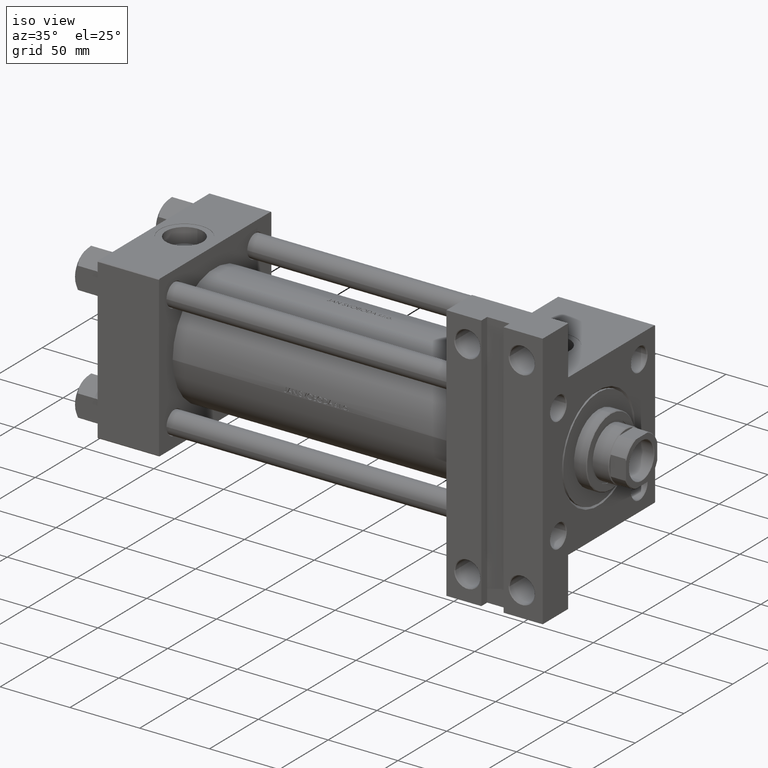
[diagram: clean part render]
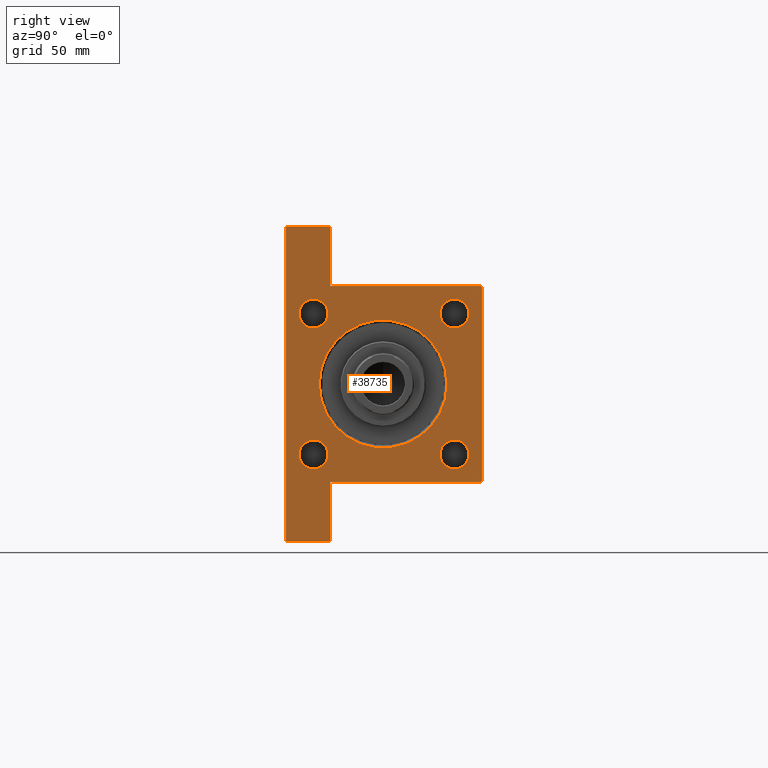
[diagram: tour spotlight — one face highlighted and labeled with its STEP entity id]
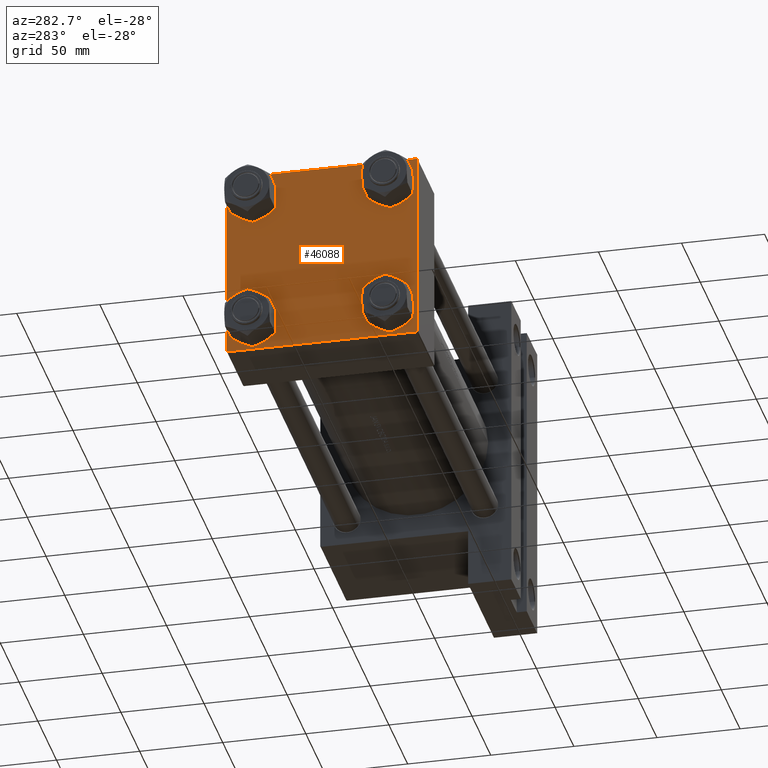
[diagram: tour spotlight — one face highlighted and labeled with its STEP entity id]
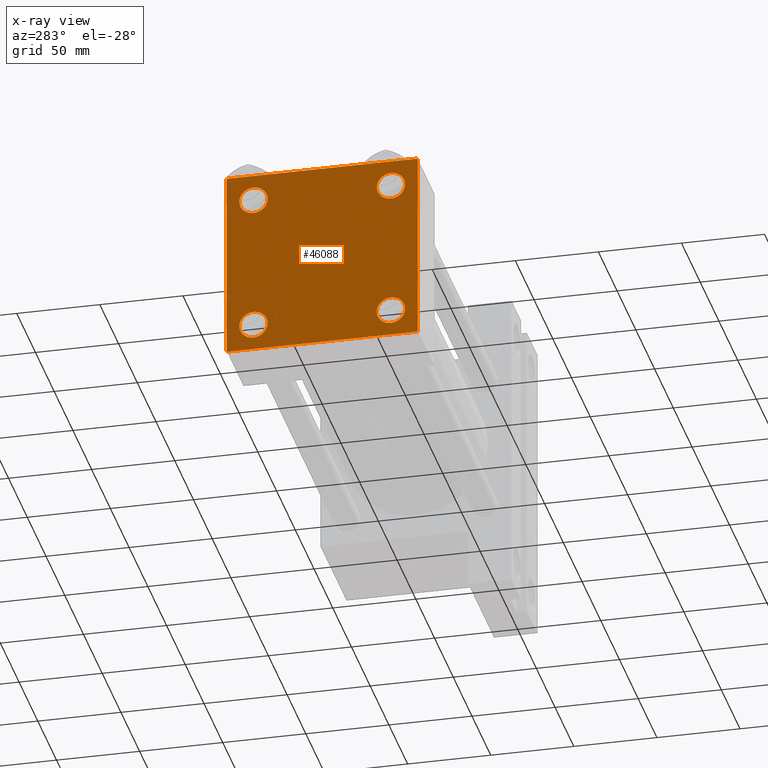
[diagram: x-ray of the same camera — body ghosted, this tour face saturated]
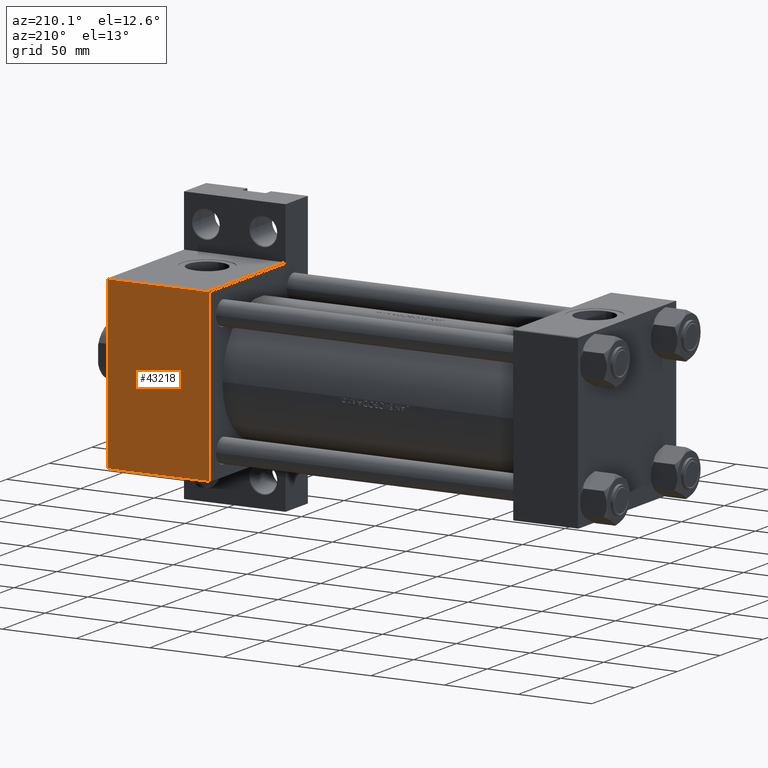
[diagram: tour spotlight — one face highlighted and labeled with its STEP entity id]
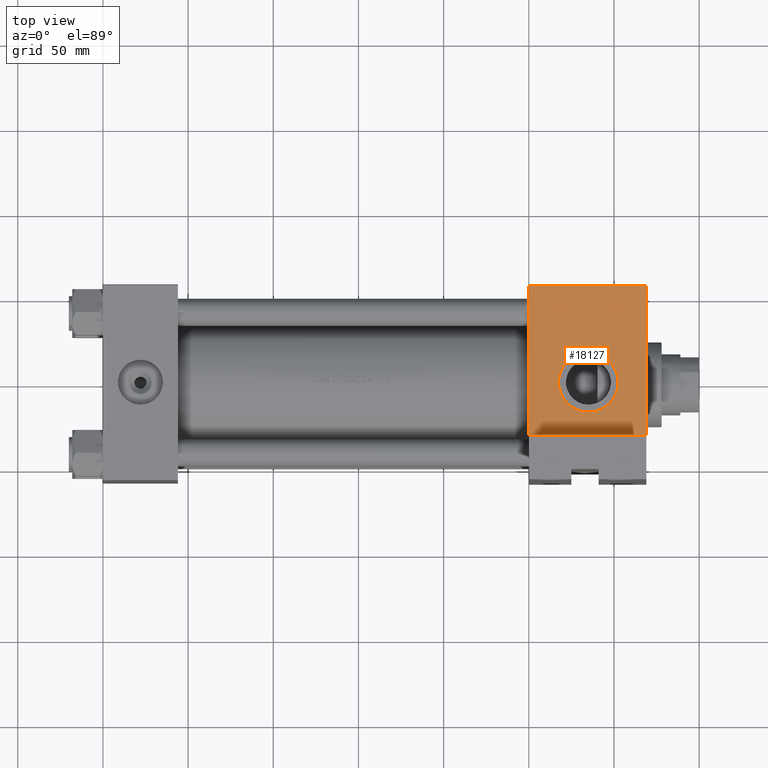
[diagram: tour spotlight — one face highlighted and labeled with its STEP entity id]
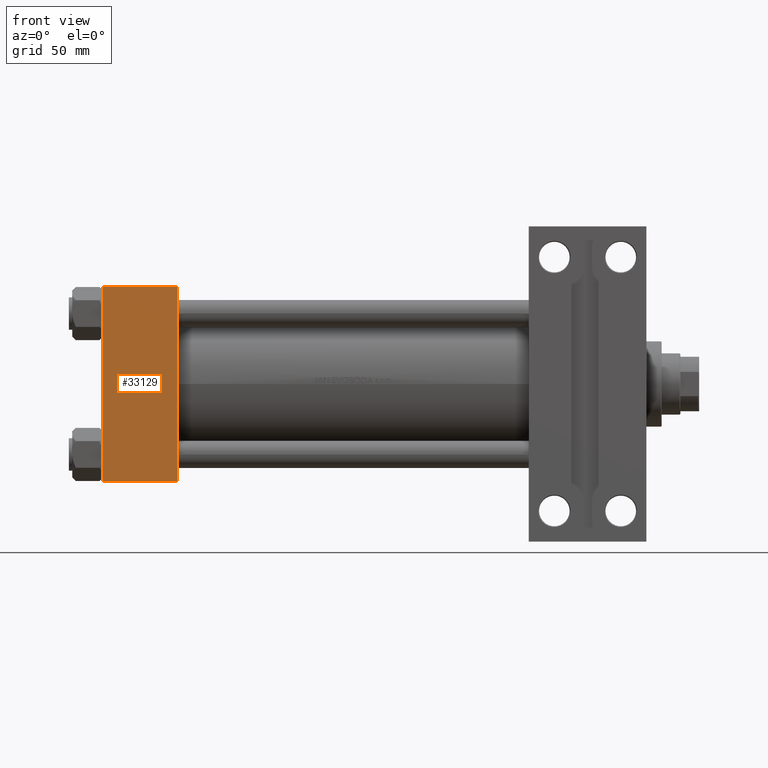
[diagram: tour spotlight — one face highlighted and labeled with its STEP entity id]
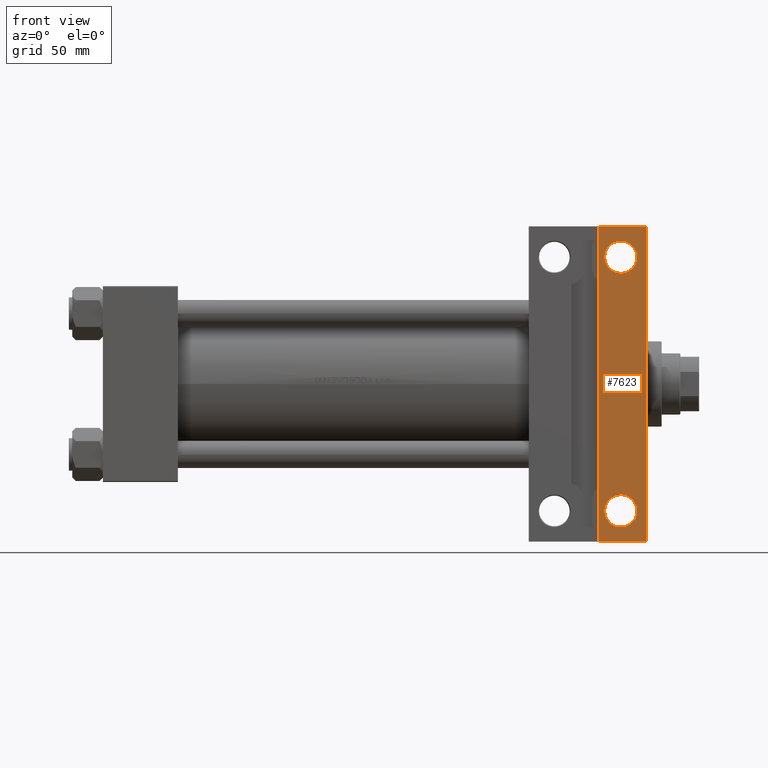
[diagram: tour spotlight — one face highlighted and labeled with its STEP entity id]
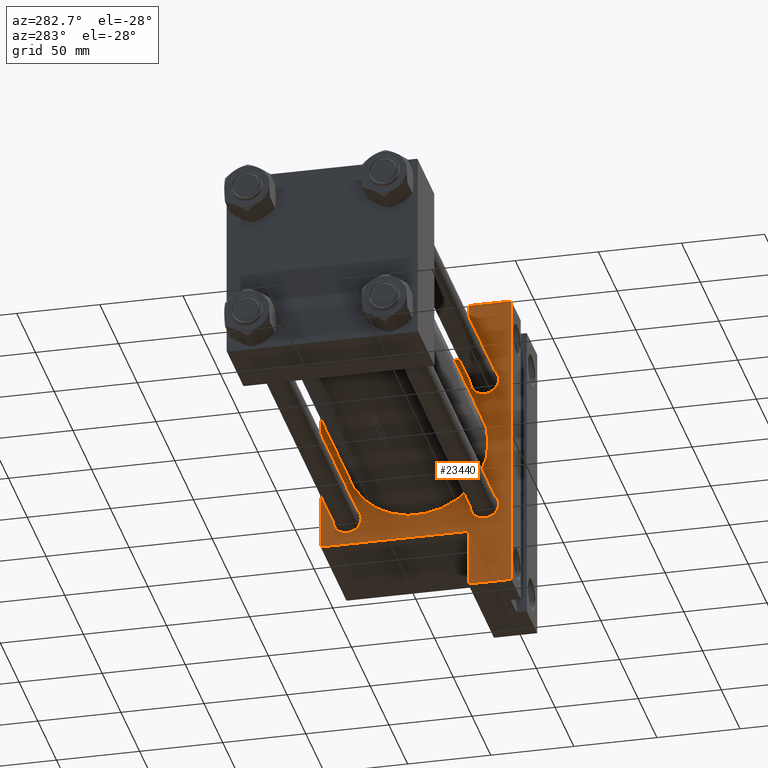
[diagram: tour spotlight — one face highlighted and labeled with its STEP entity id]
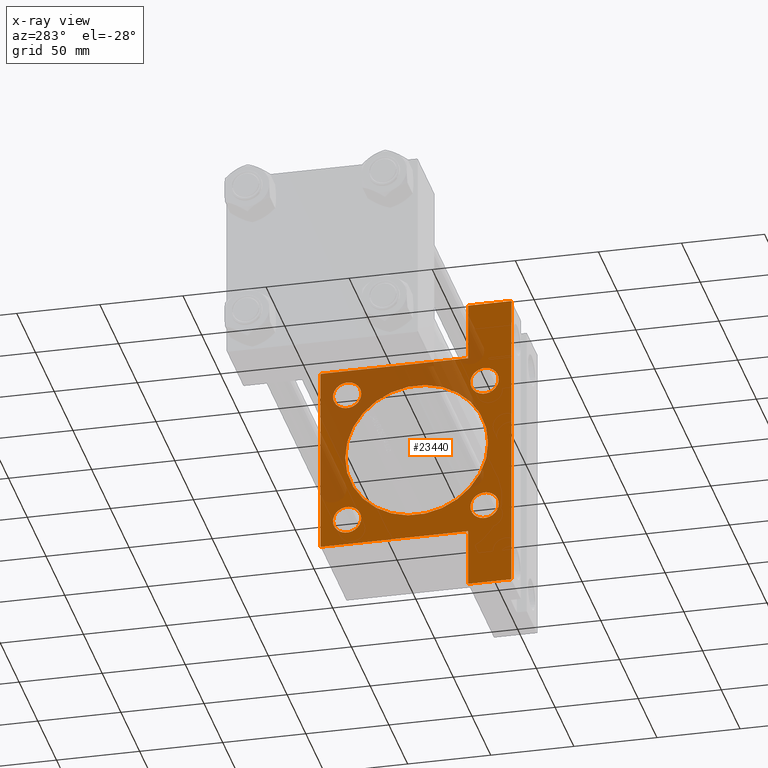
[diagram: x-ray of the same camera — body ghosted, this tour face saturated]
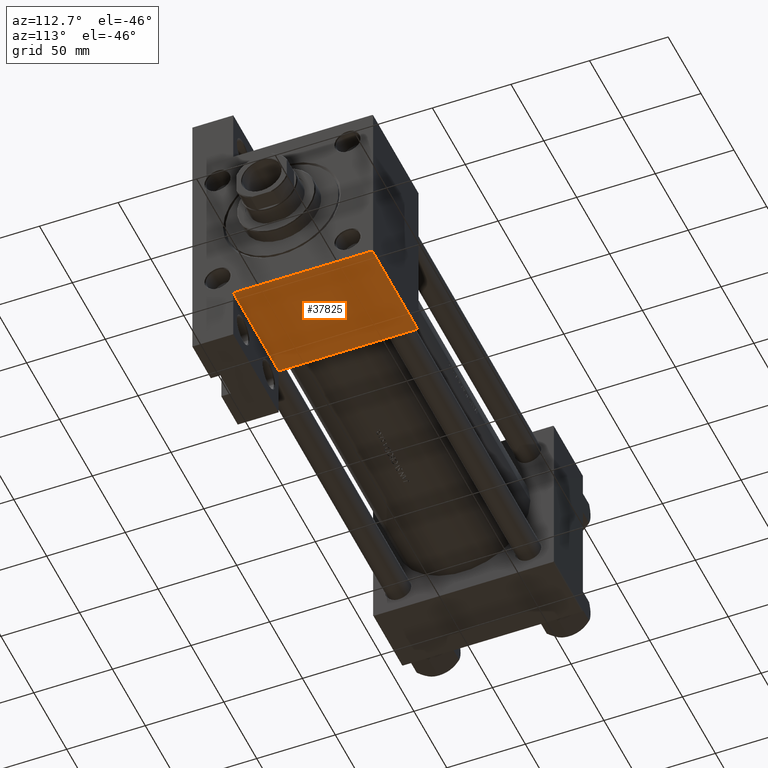
[diagram: tour spotlight — one face highlighted and labeled with its STEP entity id]
A machine part: a face-by-face anatomy tour. The part has 1151 B-rep faces; the first image is the clean iso view, then the 8 largest visible faces are spotlighted one at a time (largest first), each with its STEP entity span.

Face 1 — right view, entity #38735. In plain terms, the highlighted planar face has unit normal (-1, 0, -0).
Definition (entity closure, byte-faithful):
#267 = EDGE_CURVE ( 'NONE', #20559, #40052, #1562, .T. ) ;
#496 = CIRCLE ( 'NONE', #21450, 8.500000000000063949 ) ;
#1562 = CIRCLE ( 'NONE', #19411, 37.49999999999997868 ) ;
#2061 = DIRECTION ( 'NONE',  ( -1.000000000000000000, 0.000000000000000000, -0.000000000000000000 ) ) ;
#2435 = DIRECTION ( 'NONE',  ( 0.000000000000000000, 0.000000000000000000, -1.000000000000000000 ) ) ;
#2552 = VERTEX_POINT ( 'NONE', #16272 ) ;
#2719 = CARTESIAN_POINT ( 'NONE',  ( 319.0000000000000000, -92.50000000000004263, -57.49999999999997158 ) ) ;
#2787 = CARTESIAN_POINT ( 'NONE',  ( 319.0000000000000000, -41.34999999999999432, -41.35000000000000142 ) ) ;
#2825 = CARTESIAN_POINT ( 'NONE',  ( 319.0000000000000000, 92.49999999999998579, -57.49999999999997158 ) ) ;
#2957 = DIRECTION ( 'NONE',  ( -0.000000000000000000, -1.000000000000000000, -0.000000000000000000 ) ) ;
#3536 = AXIS2_PLACEMENT_3D ( 'NONE', #34027, #31090, #34751 ) ;
#3545 = DIRECTION ( 'NONE',  ( 0.000000000000000000, 0.000000000000000000, 1.000000000000000000 ) ) ;
#3778 = EDGE_CURVE ( 'NONE', #40052, #20559, #28715, .T. ) ;
#3967 = VERTEX_POINT ( 'NONE', #4241 ) ;
#4056 = DIRECTION ( 'NONE',  ( 0.000000000000000000, 0.000000000000000000, 1.000000000000000000 ) ) ;
#4241 = CARTESIAN_POINT ( 'NONE',  ( 319.0000000000000000, 41.34999999999999432, 49.85000000000006537 ) ) ;
#4263 = CARTESIAN_POINT ( 'NONE',  ( 319.0000000000000000, -41.34999999999999432, -32.84999999999994458 ) ) ;
#4575 = DIRECTION ( 'NONE',  ( 0.000000000000000000, 0.000000000000000000, 1.000000000000000000 ) ) ;
#4743 = DIRECTION ( 'NONE',  ( -0.000000000000000000, 0.000000000000000000, 1.000000000000000000 ) ) ;
#4764 = CIRCLE ( 'NONE', #30394, 8.500000000000063949 ) ;
#4773 = CARTESIAN_POINT ( 'NONE',  ( 319.0000000000000000, -57.49999999999999289, 57.00000000000004974 ) ) ;
#4776 = CARTESIAN_POINT ( 'NONE',  ( 319.0000000000000000, 41.34999999999999432, -32.84999999999994458 ) ) ;
#4797 = CARTESIAN_POINT ( 'NONE',  ( 319.0000000000000000, 0.000000000000000000, -37.99999999999994316 ) ) ;
#5099 = LINE ( 'NONE', #17018, #23390 ) ;
#5331 = VERTEX_POINT ( 'NONE', #4263 ) ;
#5516 = ORIENTED_EDGE ( 'NONE', *, *, #32348, .T. ) ;
#5797 = ORIENTED_EDGE ( 'NONE', *, *, #28072, .F. ) ;
#5859 = DIRECTION ( 'NONE',  ( 0.000000000000000000, 0.000000000000000000, 1.000000000000000000 ) ) ;
#6274 = VERTEX_POINT ( 'NONE', #32717 ) ;
#6307 = CARTESIAN_POINT ( 'NONE',  ( 319.0000000000000000, 57.50000000000000000, 57.50000000000000711 ) ) ;
#6318 = VECTOR ( 'NONE', #20107, 1000.000000000000000 ) ;
#6449 = CIRCLE ( 'NONE', #26633, 8.500000000000063949 ) ;
#6689 = VERTEX_POINT ( 'NONE', #30182 ) ;
#6885 = ORIENTED_EDGE ( 'NONE', *, *, #267, .T. ) ;
#6960 = EDGE_CURVE ( 'NONE', #46419, #43843, #23264, .T. ) ;
#7832 = ORIENTED_EDGE ( 'NONE', *, *, #30856, .T. ) ;
#7965 = DIRECTION ( 'NONE',  ( -1.000000000000000000, 0.000000000000000000, -0.000000000000000000 ) ) ;
#8438 = LINE ( 'NONE', #4773, #32838 ) ;
#8603 = ORIENTED_EDGE ( 'NONE', *, *, #23620, .T. ) ;
#8924 = CARTESIAN_POINT ( 'NONE',  ( 319.0000000000000000, 57.50000000000000000, 57.50000000000000711 ) ) ;
#10174 = CARTESIAN_POINT ( 'NONE',  ( 319.0000000000000000, 57.49999999999995737, -31.49999999999997158 ) ) ;
#10864 = AXIS2_PLACEMENT_3D ( 'NONE', #33518, #7965, #4056 ) ;
#11740 = EDGE_CURVE ( 'NONE', #12793, #26758, #17732, .T. ) ;
#12580 = VERTEX_POINT ( 'NONE', #2719 ) ;
#12793 = VERTEX_POINT ( 'NONE', #16544 ) ;
#12924 = ORIENTED_EDGE ( 'NONE', *, *, #11740, .T. ) ;
#12925 = EDGE_CURVE ( 'NONE', #3967, #29418, #36802, .T. ) ;
#13029 = FACE_BOUND ( 'NONE', #43211, .T. ) ;
#13461 = CARTESIAN_POINT ( 'NONE',  ( 319.0000000000000000, -92.50000000000004263, -31.49999999999997158 ) ) ;
#13678 = DIRECTION ( 'NONE',  ( 0.000000000000000000, -1.000000000000000000, 0.000000000000000000 ) ) ;
#14608 = LINE ( 'NONE', #21666, #22592 ) ;
#14836 = DIRECTION ( 'NONE',  ( -1.000000000000000000, 0.000000000000000000, -0.000000000000000000 ) ) ;
#15749 = EDGE_CURVE ( 'NONE', #29418, #3967, #6449, .T. ) ;
#16272 = CARTESIAN_POINT ( 'NONE',  ( 319.0000000000000000, -41.34999999999999432, -49.85000000000006537 ) ) ;
#16544 = CARTESIAN_POINT ( 'NONE',  ( 319.0000000000000000, 57.00000000000000000, 57.50000000000000711 ) ) ;
#16691 = DIRECTION ( 'NONE',  ( -0.000000000000000000, -0.7071067811865524577, -0.7071067811865426878 ) ) ;
#16815 = VERTEX_POINT ( 'NONE', #35968 ) ;
#16917 = VERTEX_POINT ( 'NONE', #4776 ) ;
#17018 = CARTESIAN_POINT ( 'NONE',  ( 319.0000000000000000, 57.00000000000000000, 57.50000000000000711 ) ) ;
#17346 = AXIS2_PLACEMENT_3D ( 'NONE', #28742, #2061, #4743 ) ;
#17507 = DIRECTION ( 'NONE',  ( 0.000000000000000000, 0.000000000000000000, 1.000000000000000000 ) ) ;
#17732 = LINE ( 'NONE', #6307, #26602 ) ;
#17759 = CARTESIAN_POINT ( 'NONE',  ( 319.0000000000000000, 41.34999999999999432, 41.35000000000000142 ) ) ;
#17787 = EDGE_CURVE ( 'NONE', #24743, #20037, #27647, .T. ) ;
#19105 = DIRECTION ( 'NONE',  ( -1.000000000000000000, 0.000000000000000000, -0.000000000000000000 ) ) ;
#19411 = AXIS2_PLACEMENT_3D ( 'NONE', #48159, #14836, #28712 ) ;
#19977 = LINE ( 'NONE', #45997, #40176 ) ;
#20004 = EDGE_CURVE ( 'NONE', #46865, #12580, #24012, .T. ) ;
#20037 = VERTEX_POINT ( 'NONE', #46873 ) ;
#20107 = DIRECTION ( 'NONE',  ( 0.000000000000000000, 0.000000000000000000, -1.000000000000000000 ) ) ;
#20559 = VERTEX_POINT ( 'NONE', #4797 ) ;
#20565 = FACE_BOUND ( 'NONE', #37372, .T. ) ;
#20744 = ORIENTED_EDGE ( 'NONE', *, *, #29847, .T. ) ;
#20967 = CIRCLE ( 'NONE', #26352, 8.500000000000063949 ) ;
#21038 = CARTESIAN_POINT ( 'NONE',  ( 319.0000000000000000, -57.49999999999999289, 57.00000000000004974 ) ) ;
#21100 = ORIENTED_EDGE ( 'NONE', *, *, #21591, .T. ) ;
#21450 = AXIS2_PLACEMENT_3D ( 'NONE', #37583, #19105, #30279 ) ;
#21591 = EDGE_CURVE ( 'NONE', #41776, #16815, #19977, .T. ) ;
#21666 = CARTESIAN_POINT ( 'NONE',  ( 319.0000000000000000, 92.49999999999998579, -31.49999999999997158 ) ) ;
#21763 = DIRECTION ( 'NONE',  ( 0.000000000000000000, 0.000000000000000000, 1.000000000000000000 ) ) ;
#22275 = ORIENTED_EDGE ( 'NONE', *, *, #6960, .F. ) ;
#22362 = CARTESIAN_POINT ( 'NONE',  ( 319.0000000000000000, -41.34999999999999432, 41.35000000000000142 ) ) ;
#22450 = CARTESIAN_POINT ( 'NONE',  ( 319.0000000000000000, -57.00000000000004263, 57.49999999999999289 ) ) ;
#22592 = VECTOR ( 'NONE', #13678, 1000.000000000000000 ) ;
#23078 = VERTEX_POINT ( 'NONE', #41686 ) ;
#23264 = LINE ( 'NONE', #8924, #6318 ) ;
#23390 = VECTOR ( 'NONE', #28195, 1000.000000000000114 ) ;
#23620 = EDGE_CURVE ( 'NONE', #23078, #16917, #34046, .T. ) ;
#23631 = EDGE_LOOP ( 'NONE', ( #22275, #7832, #12924, #29155, #21100, #24436, #39664, #41011, #5797, #20744 ) ) ;
#23886 = LINE ( 'NONE', #28017, #25705 ) ;
#24012 = LINE ( 'NONE', #35210, #40906 ) ;
#24206 = PLANE ( 'NONE',  #17346 ) ;
#24420 = CARTESIAN_POINT ( 'NONE',  ( 319.0000000000000000, 41.34999999999999432, 32.84999999999994458 ) ) ;
#24436 = ORIENTED_EDGE ( 'NONE', *, *, #42104, .T. ) ;
#24691 = DIRECTION ( 'NONE',  ( -1.000000000000000000, 0.000000000000000000, -0.000000000000000000 ) ) ;
#24743 = VERTEX_POINT ( 'NONE', #25395 ) ;
#24783 = EDGE_CURVE ( 'NONE', #2552, #5331, #46399, .T. ) ;
#24800 = DIRECTION ( 'NONE',  ( -1.000000000000000000, 0.000000000000000000, -0.000000000000000000 ) ) ;
#24852 = CARTESIAN_POINT ( 'NONE',  ( 319.0000000000000000, 92.49999999999998579, -31.49999999999997158 ) ) ;
#24888 = EDGE_LOOP ( 'NONE', ( #8603, #42642 ) ) ;
#25377 = DIRECTION ( 'NONE',  ( 0.000000000000000000, 0.000000000000000000, 1.000000000000000000 ) ) ;
#25395 = CARTESIAN_POINT ( 'NONE',  ( 319.0000000000000000, -41.34999999999999432, 49.85000000000006537 ) ) ;
#25705 = VECTOR ( 'NONE', #42853, 1000.000000000000000 ) ;
#25980 = VECTOR ( 'NONE', #2957, 1000.000000000000000 ) ;
#26128 = ORIENTED_EDGE ( 'NONE', *, *, #12925, .T. ) ;
#26232 = DIRECTION ( 'NONE',  ( -1.000000000000000000, 0.000000000000000000, -0.000000000000000000 ) ) ;
#26352 = AXIS2_PLACEMENT_3D ( 'NONE', #44111, #48006, #25377 ) ;
#26602 = VECTOR ( 'NONE', #32573, 1000.000000000000000 ) ;
#26633 = AXIS2_PLACEMENT_3D ( 'NONE', #17759, #46724, #5859 ) ;
#26758 = VERTEX_POINT ( 'NONE', #22450 ) ;
#27633 = EDGE_CURVE ( 'NONE', #5331, #2552, #20967, .T. ) ;
#27647 = CIRCLE ( 'NONE', #3536, 8.500000000000063949 ) ;
#28017 = CARTESIAN_POINT ( 'NONE',  ( 319.0000000000000000, -92.50000000000004263, -31.49999999999997158 ) ) ;
#28072 = EDGE_CURVE ( 'NONE', #6274, #46865, #36524, .T. ) ;
#28195 = DIRECTION ( 'NONE',  ( 0.000000000000000000, -0.7071067811865474617, 0.7071067811865474617 ) ) ;
#28712 = DIRECTION ( 'NONE',  ( 0.000000000000000000, 0.000000000000000000, 1.000000000000000000 ) ) ;
#28715 = CIRCLE ( 'NONE', #10864, 37.49999999999997868 ) ;
#28742 = CARTESIAN_POINT ( 'NONE',  ( 319.0000000000000000, 0.000000000000000000, 0.000000000000000000 ) ) ;
#29155 = ORIENTED_EDGE ( 'NONE', *, *, #33784, .T. ) ;
#29418 = VERTEX_POINT ( 'NONE', #24420 ) ;
#29847 = EDGE_CURVE ( 'NONE', #6274, #43843, #14608, .T. ) ;
#30182 = CARTESIAN_POINT ( 'NONE',  ( 319.0000000000000000, -92.50000000000004263, -31.49999999999997158 ) ) ;
#30279 = DIRECTION ( 'NONE',  ( 0.000000000000000000, 0.000000000000000000, 1.000000000000000000 ) ) ;
#30394 = AXIS2_PLACEMENT_3D ( 'NONE', #22362, #26232, #4575 ) ;
#30644 = EDGE_CURVE ( 'NONE', #6689, #12580, #23886, .T. ) ;
#30856 = EDGE_CURVE ( 'NONE', #46419, #12793, #5099, .T. ) ;
#31036 = ORIENTED_EDGE ( 'NONE', *, *, #15749, .T. ) ;
#31090 = DIRECTION ( 'NONE',  ( -1.000000000000000000, 0.000000000000000000, -0.000000000000000000 ) ) ;
#31502 = FACE_OUTER_BOUND ( 'NONE', #23631, .T. ) ;
#32348 = EDGE_CURVE ( 'NONE', #20037, #24743, #4764, .T. ) ;
#32573 = DIRECTION ( 'NONE',  ( 0.000000000000000000, -1.000000000000000000, -1.206764157201257291E-16 ) ) ;
#32717 = CARTESIAN_POINT ( 'NONE',  ( 319.0000000000000000, 92.49999999999998579, -31.49999999999997158 ) ) ;
#32763 = DIRECTION ( 'NONE',  ( -1.000000000000000000, 0.000000000000000000, -0.000000000000000000 ) ) ;
#32838 = VECTOR ( 'NONE', #16691, 1000.000000000000000 ) ;
#33518 = CARTESIAN_POINT ( 'NONE',  ( 319.0000000000000000, 0.000000000000000000, -0.4999999999999657496 ) ) ;
#33784 = EDGE_CURVE ( 'NONE', #26758, #41776, #8438, .T. ) ;
#34027 = CARTESIAN_POINT ( 'NONE',  ( 319.0000000000000000, -41.34999999999999432, 41.35000000000000142 ) ) ;
#34046 = CIRCLE ( 'NONE', #34819, 8.500000000000063949 ) ;
#34101 = ORIENTED_EDGE ( 'NONE', *, *, #3778, .T. ) ;
#34185 = CARTESIAN_POINT ( 'NONE',  ( 319.0000000000000000, 4.592425496802571211E-15, 37.00000000000001421 ) ) ;
#34441 = FACE_BOUND ( 'NONE', #46253, .T. ) ;
#34751 = DIRECTION ( 'NONE',  ( 0.000000000000000000, 0.000000000000000000, 1.000000000000000000 ) ) ;
#34819 = AXIS2_PLACEMENT_3D ( 'NONE', #40533, #32763, #3545 ) ;
#35210 = CARTESIAN_POINT ( 'NONE',  ( 319.0000000000000000, 57.50000000000000000, -57.49999999999996447 ) ) ;
#35409 = FACE_BOUND ( 'NONE', #24888, .T. ) ;
#35758 = EDGE_LOOP ( 'NONE', ( #45402, #46603 ) ) ;
#35968 = CARTESIAN_POINT ( 'NONE',  ( 319.0000000000000000, -57.49999999999999289, -31.49999999999997158 ) ) ;
#36488 = VECTOR ( 'NONE', #39689, 1000.000000000000000 ) ;
#36524 = LINE ( 'NONE', #24852, #36488 ) ;
#36802 = CIRCLE ( 'NONE', #42247, 8.500000000000063949 ) ;
#37372 = EDGE_LOOP ( 'NONE', ( #5516, #39247 ) ) ;
#37583 = CARTESIAN_POINT ( 'NONE',  ( 319.0000000000000000, 41.34999999999999432, -41.35000000000000142 ) ) ;
#38735 = ADVANCED_FACE ( 'NONE', ( #34441, #20565, #45856, #35409, #13029, #31502 ), #24206, .F. ) ;
#39247 = ORIENTED_EDGE ( 'NONE', *, *, #17787, .T. ) ;
#39390 = AXIS2_PLACEMENT_3D ( 'NONE', #2787, #24691, #21763 ) ;
#39664 = ORIENTED_EDGE ( 'NONE', *, *, #30644, .T. ) ;
#39689 = DIRECTION ( 'NONE',  ( 0.000000000000000000, 0.000000000000000000, -1.000000000000000000 ) ) ;
#40052 = VERTEX_POINT ( 'NONE', #34185 ) ;
#40176 = VECTOR ( 'NONE', #2435, 1000.000000000000000 ) ;
#40533 = CARTESIAN_POINT ( 'NONE',  ( 319.0000000000000000, 41.34999999999999432, -41.35000000000000142 ) ) ;
#40906 = VECTOR ( 'NONE', #46634, 1000.000000000000000 ) ;
#41011 = ORIENTED_EDGE ( 'NONE', *, *, #20004, .F. ) ;
#41167 = CARTESIAN_POINT ( 'NONE',  ( 319.0000000000000000, 57.50000000000000000, 57.00000000000000711 ) ) ;
#41686 = CARTESIAN_POINT ( 'NONE',  ( 319.0000000000000000, 41.34999999999999432, -49.85000000000006537 ) ) ;
#41776 = VERTEX_POINT ( 'NONE', #21038 ) ;
#42104 = EDGE_CURVE ( 'NONE', #16815, #6689, #46772, .T. ) ;
#42247 = AXIS2_PLACEMENT_3D ( 'NONE', #43287, #24800, #17507 ) ;
#42642 = ORIENTED_EDGE ( 'NONE', *, *, #47073, .T. ) ;
#42853 = DIRECTION ( 'NONE',  ( 0.000000000000000000, 0.000000000000000000, -1.000000000000000000 ) ) ;
#43211 = EDGE_LOOP ( 'NONE', ( #6885, #34101 ) ) ;
#43287 = CARTESIAN_POINT ( 'NONE',  ( 319.0000000000000000, 41.34999999999999432, 41.35000000000000142 ) ) ;
#43843 = VERTEX_POINT ( 'NONE', #10174 ) ;
#44111 = CARTESIAN_POINT ( 'NONE',  ( 319.0000000000000000, -41.34999999999999432, -41.35000000000000142 ) ) ;
#45402 = ORIENTED_EDGE ( 'NONE', *, *, #24783, .T. ) ;
#45856 = FACE_BOUND ( 'NONE', #35758, .T. ) ;
#45997 = CARTESIAN_POINT ( 'NONE',  ( 319.0000000000000000, -57.49999999999999289, 57.49999999999999289 ) ) ;
#46253 = EDGE_LOOP ( 'NONE', ( #31036, #26128 ) ) ;
#46399 = CIRCLE ( 'NONE', #39390, 8.500000000000063949 ) ;
#46419 = VERTEX_POINT ( 'NONE', #41167 ) ;
#46603 = ORIENTED_EDGE ( 'NONE', *, *, #27633, .T. ) ;
#46634 = DIRECTION ( 'NONE',  ( 0.000000000000000000, -1.000000000000000000, -1.206764157201257291E-16 ) ) ;
#46724 = DIRECTION ( 'NONE',  ( -1.000000000000000000, 0.000000000000000000, -0.000000000000000000 ) ) ;
#46772 = LINE ( 'NONE', #13461, #25980 ) ;
#46865 = VERTEX_POINT ( 'NONE', #2825 ) ;
#46873 = CARTESIAN_POINT ( 'NONE',  ( 319.0000000000000000, -41.34999999999999432, 32.84999999999994458 ) ) ;
#47073 = EDGE_CURVE ( 'NONE', #16917, #23078, #496, .T. ) ;
#48006 = DIRECTION ( 'NONE',  ( -1.000000000000000000, 0.000000000000000000, -0.000000000000000000 ) ) ;
#48159 = CARTESIAN_POINT ( 'NONE',  ( 319.0000000000000000, 0.000000000000000000, -0.4999999999999657496 ) ) ;

Face 2 — auxiliary view, entity #46088. An x-ray twin of the same camera follows (body ghosted, this face saturated) — the face is partly hidden behind the body. In plain terms, the highlighted planar face has unit normal (-1, 0, -0).
Definition (entity closure, byte-faithful):
#19 = CARTESIAN_POINT ( 'NONE',  ( 0.000000000000000000, -41.34999999999998721, 41.35000000000000853 ) ) ;
#495 = CARTESIAN_POINT ( 'NONE',  ( 0.000000000000000000, -41.34999999999998721, -49.85000000000000853 ) ) ;
#541 = CARTESIAN_POINT ( 'NONE',  ( 0.000000000000000000, 57.24999999999922551, 57.25000000000081712 ) ) ;
#717 = VECTOR ( 'NONE', #5757, 1000.000000000000000 ) ;
#831 = LINE ( 'NONE', #33458, #40878 ) ;
#1082 = AXIS2_PLACEMENT_3D ( 'NONE', #9073, #31441, #23900 ) ;
#1671 = CARTESIAN_POINT ( 'NONE',  ( 0.000000000000000000, 57.49999999999999289, -57.00000000000000711 ) ) ;
#1719 = DIRECTION ( 'NONE',  ( 0.000000000000000000, 0.000000000000000000, -1.000000000000000000 ) ) ;
#1729 = VECTOR ( 'NONE', #8688, 1000.000000000000114 ) ;
#2305 = ORIENTED_EDGE ( 'NONE', *, *, #7024, .T. ) ;
#2799 = EDGE_CURVE ( 'NONE', #4023, #21041, #46142, .T. ) ;
#2802 = ORIENTED_EDGE ( 'NONE', *, *, #21563, .T. ) ;
#3023 = AXIS2_PLACEMENT_3D ( 'NONE', #5754, #13064, #27881 ) ;
#3936 = VECTOR ( 'NONE', #5500, 1000.000000000000114 ) ;
#4023 = VERTEX_POINT ( 'NONE', #37808 ) ;
#4696 = EDGE_CURVE ( 'NONE', #43613, #8858, #24325, .T. ) ;
#5500 = DIRECTION ( 'NONE',  ( -0.000000000000000000, 0.7071067811865376918, 0.7071067811865573427 ) ) ;
#5597 = DIRECTION ( 'NONE',  ( 0.000000000000000000, -1.000000000000000000, -1.206764157201257045E-16 ) ) ;
#5754 = CARTESIAN_POINT ( 'NONE',  ( 0.000000000000000000, 41.34999999999999432, 41.35000000000000142 ) ) ;
#5757 = DIRECTION ( 'NONE',  ( 0.000000000000000000, 0.000000000000000000, -1.000000000000000000 ) ) ;
#6484 = EDGE_LOOP ( 'NONE', ( #2802, #15550, #45242, #27311, #42572, #2305, #14366, #15170 ) ) ;
#6847 = DIRECTION ( 'NONE',  ( 1.000000000000000000, -0.000000000000000000, 0.000000000000000000 ) ) ;
#7024 = EDGE_CURVE ( 'NONE', #4023, #8858, #23989, .T. ) ;
#7400 = ORIENTED_EDGE ( 'NONE', *, *, #27402, .T. ) ;
#7730 = DIRECTION ( 'NONE',  ( 1.000000000000000000, -0.000000000000000000, 0.000000000000000000 ) ) ;
#7766 = EDGE_LOOP ( 'NONE', ( #11305, #18918 ) ) ;
#7981 = CIRCLE ( 'NONE', #28189, 8.499999999999992895 ) ;
#8172 = AXIS2_PLACEMENT_3D ( 'NONE', #31881, #17751, #46237 ) ;
#8686 = CARTESIAN_POINT ( 'NONE',  ( 0.000000000000000000, -57.50000000000000711, 57.49999999999999289 ) ) ;
#8688 = DIRECTION ( 'NONE',  ( 0.000000000000000000, -0.7071067811865474617, 0.7071067811865474617 ) ) ;
#8842 = EDGE_LOOP ( 'NONE', ( #21366, #15657 ) ) ;
#8858 = VERTEX_POINT ( 'NONE', #31987 ) ;
#9073 = CARTESIAN_POINT ( 'NONE',  ( 0.000000000000000000, 41.34999999999999432, -41.35000000000000142 ) ) ;
#9376 = PLANE ( 'NONE',  #18554 ) ;
#10442 = EDGE_CURVE ( 'NONE', #21395, #21041, #15735, .T. ) ;
#10819 = ORIENTED_EDGE ( 'NONE', *, *, #11159, .T. ) ;
#11159 = EDGE_CURVE ( 'NONE', #41345, #43354, #7981, .T. ) ;
#11305 = ORIENTED_EDGE ( 'NONE', *, *, #38995, .T. ) ;
#11588 = CARTESIAN_POINT ( 'NONE',  ( 0.000000000000000000, 41.34999999999999432, -49.85000000000000142 ) ) ;
#12749 = EDGE_CURVE ( 'NONE', #27863, #47606, #38316, .T. ) ;
#12911 = CARTESIAN_POINT ( 'NONE',  ( 0.000000000000000000, 57.49999999999999289, 57.50000000000000711 ) ) ;
#13018 = FACE_BOUND ( 'NONE', #8842, .T. ) ;
#13064 = DIRECTION ( 'NONE',  ( 1.000000000000000000, -0.000000000000000000, 0.000000000000000000 ) ) ;
#13131 = CARTESIAN_POINT ( 'NONE',  ( 0.000000000000000000, -41.34999999999998721, -32.85000000000001563 ) ) ;
#14217 = AXIS2_PLACEMENT_3D ( 'NONE', #19, #6847, #14865 ) ;
#14366 = ORIENTED_EDGE ( 'NONE', *, *, #4696, .F. ) ;
#14405 = CARTESIAN_POINT ( 'NONE',  ( 0.000000000000000000, -57.00000000000000711, -57.50000000000000711 ) ) ;
#14669 = CIRCLE ( 'NONE', #3023, 8.499999999999992895 ) ;
#14744 = CIRCLE ( 'NONE', #31063, 8.499999999999992895 ) ;
#14865 = DIRECTION ( 'NONE',  ( 0.000000000000000000, 0.000000000000000000, 1.000000000000000000 ) ) ;
#15082 = CIRCLE ( 'NONE', #1082, 8.499999999999992895 ) ;
#15170 = ORIENTED_EDGE ( 'NONE', *, *, #38105, .T. ) ;
#15550 = ORIENTED_EDGE ( 'NONE', *, *, #19227, .T. ) ;
#15657 = ORIENTED_EDGE ( 'NONE', *, *, #12749, .T. ) ;
#15735 = LINE ( 'NONE', #38355, #1729 ) ;
#16024 = CIRCLE ( 'NONE', #43971, 8.499999999999992895 ) ;
#16207 = EDGE_CURVE ( 'NONE', #39034, #21395, #38574, .T. ) ;
#16408 = DIRECTION ( 'NONE',  ( -1.000000000000000000, 0.000000000000000000, -0.000000000000000000 ) ) ;
#16669 = VERTEX_POINT ( 'NONE', #1671 ) ;
#17375 = CARTESIAN_POINT ( 'NONE',  ( 0.000000000000000000, 0.000000000000000000, 0.000000000000000000 ) ) ;
#17751 = DIRECTION ( 'NONE',  ( 1.000000000000000000, -0.000000000000000000, 0.000000000000000000 ) ) ;
#18554 = AXIS2_PLACEMENT_3D ( 'NONE', #17375, #16408, #42913 ) ;
#18918 = ORIENTED_EDGE ( 'NONE', *, *, #46960, .T. ) ;
#19056 = EDGE_LOOP ( 'NONE', ( #23438, #7400 ) ) ;
#19227 = EDGE_CURVE ( 'NONE', #16669, #39034, #831, .T. ) ;
#19328 = DIRECTION ( 'NONE',  ( -0.000000000000000000, -0.7071067811865376918, -0.7071067811865573427 ) ) ;
#19343 = CARTESIAN_POINT ( 'NONE',  ( 0.000000000000000000, -41.34999999999998721, -41.35000000000000853 ) ) ;
#21041 = VERTEX_POINT ( 'NONE', #37899 ) ;
#21325 = DIRECTION ( 'NONE',  ( 1.000000000000000000, -0.000000000000000000, 0.000000000000000000 ) ) ;
#21366 = ORIENTED_EDGE ( 'NONE', *, *, #45190, .T. ) ;
#21395 = VERTEX_POINT ( 'NONE', #14405 ) ;
#21563 = EDGE_CURVE ( 'NONE', #32654, #16669, #28225, .T. ) ;
#21764 = VERTEX_POINT ( 'NONE', #44969 ) ;
#23438 = ORIENTED_EDGE ( 'NONE', *, *, #42884, .T. ) ;
#23900 = DIRECTION ( 'NONE',  ( 0.000000000000000000, 0.000000000000000000, 1.000000000000000000 ) ) ;
#23989 = LINE ( 'NONE', #31043, #3936 ) ;
#24325 = LINE ( 'NONE', #12911, #45061 ) ;
#24666 = FACE_BOUND ( 'NONE', #19056, .T. ) ;
#26516 = CARTESIAN_POINT ( 'NONE',  ( 0.000000000000000000, 41.34999999999999432, 41.35000000000000142 ) ) ;
#26556 = DIRECTION ( 'NONE',  ( 0.000000000000000000, 0.7071067811865573427, -0.7071067811865376918 ) ) ;
#27311 = ORIENTED_EDGE ( 'NONE', *, *, #10442, .T. ) ;
#27402 = EDGE_CURVE ( 'NONE', #47536, #30093, #14744, .T. ) ;
#27577 = CIRCLE ( 'NONE', #8172, 8.499999999999992895 ) ;
#27863 = VERTEX_POINT ( 'NONE', #46036 ) ;
#27881 = DIRECTION ( 'NONE',  ( 0.000000000000000000, 0.000000000000000000, 1.000000000000000000 ) ) ;
#28189 = AXIS2_PLACEMENT_3D ( 'NONE', #37160, #7730, #44218 ) ;
#28225 = LINE ( 'NONE', #35065, #42505 ) ;
#29721 = VECTOR ( 'NONE', #26556, 1000.000000000000114 ) ;
#29890 = CARTESIAN_POINT ( 'NONE',  ( 0.000000000000000000, 57.00000000000000711, 57.50000000000000711 ) ) ;
#29928 = DIRECTION ( 'NONE',  ( 0.000000000000000000, 0.000000000000000000, 1.000000000000000000 ) ) ;
#30093 = VERTEX_POINT ( 'NONE', #13131 ) ;
#30659 = CARTESIAN_POINT ( 'NONE',  ( 0.000000000000000000, 57.00000000000002132, -57.49999999999999289 ) ) ;
#31043 = CARTESIAN_POINT ( 'NONE',  ( -0.000000000000000000, -57.25000000000081712, 57.24999999999922551 ) ) ;
#31063 = AXIS2_PLACEMENT_3D ( 'NONE', #19343, #44882, #41229 ) ;
#31441 = DIRECTION ( 'NONE',  ( 1.000000000000000000, -0.000000000000000000, 0.000000000000000000 ) ) ;
#31881 = CARTESIAN_POINT ( 'NONE',  ( 0.000000000000000000, -41.34999999999998721, -41.35000000000000853 ) ) ;
#31979 = FACE_BOUND ( 'NONE', #7766, .T. ) ;
#31987 = CARTESIAN_POINT ( 'NONE',  ( 0.000000000000000000, -57.00000000000003553, 57.49999999999999289 ) ) ;
#32654 = VERTEX_POINT ( 'NONE', #44906 ) ;
#33277 = VERTEX_POINT ( 'NONE', #34768 ) ;
#33458 = CARTESIAN_POINT ( 'NONE',  ( 0.000000000000000000, 57.25000000000081712, -57.24999999999922551 ) ) ;
#33883 = LINE ( 'NONE', #541, #29721 ) ;
#34768 = CARTESIAN_POINT ( 'NONE',  ( 0.000000000000000000, -41.34999999999998721, 49.85000000000000853 ) ) ;
#34805 = CARTESIAN_POINT ( 'NONE',  ( 0.000000000000000000, 41.34999999999999432, -32.85000000000000853 ) ) ;
#35065 = CARTESIAN_POINT ( 'NONE',  ( 0.000000000000000000, 57.49999999999999289, 57.50000000000000711 ) ) ;
#35221 = AXIS2_PLACEMENT_3D ( 'NONE', #26516, #45257, #29928 ) ;
#35657 = ORIENTED_EDGE ( 'NONE', *, *, #41122, .T. ) ;
#36755 = CIRCLE ( 'NONE', #14217, 8.499999999999992895 ) ;
#37160 = CARTESIAN_POINT ( 'NONE',  ( 0.000000000000000000, 41.34999999999999432, -41.35000000000000142 ) ) ;
#37808 = CARTESIAN_POINT ( 'NONE',  ( 0.000000000000000000, -57.50000000000000711, 57.00000000000000711 ) ) ;
#37899 = CARTESIAN_POINT ( 'NONE',  ( 0.000000000000000000, -57.50000000000000711, -57.00000000000000711 ) ) ;
#38105 = EDGE_CURVE ( 'NONE', #43613, #32654, #33883, .T. ) ;
#38316 = CIRCLE ( 'NONE', #35221, 8.499999999999992895 ) ;
#38355 = CARTESIAN_POINT ( 'NONE',  ( 0.000000000000000000, -57.25000000000000711, -57.25000000000000711 ) ) ;
#38574 = LINE ( 'NONE', #43422, #43928 ) ;
#38995 = EDGE_CURVE ( 'NONE', #33277, #21764, #36755, .T. ) ;
#39034 = VERTEX_POINT ( 'NONE', #30659 ) ;
#40878 = VECTOR ( 'NONE', #19328, 1000.000000000000114 ) ;
#41122 = EDGE_CURVE ( 'NONE', #43354, #41345, #15082, .T. ) ;
#41229 = DIRECTION ( 'NONE',  ( 0.000000000000000000, 0.000000000000000000, 1.000000000000000000 ) ) ;
#41345 = VERTEX_POINT ( 'NONE', #34805 ) ;
#42191 = FACE_BOUND ( 'NONE', #46379, .T. ) ;
#42464 = DIRECTION ( 'NONE',  ( 0.000000000000000000, -1.000000000000000000, -1.206764157201257045E-16 ) ) ;
#42505 = VECTOR ( 'NONE', #1719, 1000.000000000000000 ) ;
#42572 = ORIENTED_EDGE ( 'NONE', *, *, #2799, .F. ) ;
#42805 = CARTESIAN_POINT ( 'NONE',  ( 0.000000000000000000, 41.34999999999999432, 49.85000000000000142 ) ) ;
#42884 = EDGE_CURVE ( 'NONE', #30093, #47536, #27577, .T. ) ;
#42913 = DIRECTION ( 'NONE',  ( -0.000000000000000000, 0.000000000000000000, 1.000000000000000000 ) ) ;
#43354 = VERTEX_POINT ( 'NONE', #11588 ) ;
#43422 = CARTESIAN_POINT ( 'NONE',  ( 0.000000000000000000, 57.49999999999999289, -57.49999999999999289 ) ) ;
#43613 = VERTEX_POINT ( 'NONE', #29890 ) ;
#43928 = VECTOR ( 'NONE', #42464, 1000.000000000000000 ) ;
#43971 = AXIS2_PLACEMENT_3D ( 'NONE', #46878, #21325, #46395 ) ;
#44218 = DIRECTION ( 'NONE',  ( 0.000000000000000000, 0.000000000000000000, 1.000000000000000000 ) ) ;
#44882 = DIRECTION ( 'NONE',  ( 1.000000000000000000, -0.000000000000000000, 0.000000000000000000 ) ) ;
#44906 = CARTESIAN_POINT ( 'NONE',  ( 0.000000000000000000, 57.49999999999999289, 57.00000000000003553 ) ) ;
#44969 = CARTESIAN_POINT ( 'NONE',  ( 0.000000000000000000, -41.34999999999998721, 32.85000000000001563 ) ) ;
#45061 = VECTOR ( 'NONE', #5597, 1000.000000000000000 ) ;
#45190 = EDGE_CURVE ( 'NONE', #47606, #27863, #14669, .T. ) ;
#45242 = ORIENTED_EDGE ( 'NONE', *, *, #16207, .T. ) ;
#45257 = DIRECTION ( 'NONE',  ( 1.000000000000000000, -0.000000000000000000, 0.000000000000000000 ) ) ;
#46036 = CARTESIAN_POINT ( 'NONE',  ( 0.000000000000000000, 41.34999999999999432, 32.85000000000000853 ) ) ;
#46088 = ADVANCED_FACE ( 'NONE', ( #31979, #24666, #42191, #13018, #46814 ), #9376, .T. ) ;
#46142 = LINE ( 'NONE', #8686, #717 ) ;
#46237 = DIRECTION ( 'NONE',  ( 0.000000000000000000, 0.000000000000000000, 1.000000000000000000 ) ) ;
#46379 = EDGE_LOOP ( 'NONE', ( #10819, #35657 ) ) ;
#46395 = DIRECTION ( 'NONE',  ( 0.000000000000000000, 0.000000000000000000, 1.000000000000000000 ) ) ;
#46814 = FACE_OUTER_BOUND ( 'NONE', #6484, .T. ) ;
#46878 = CARTESIAN_POINT ( 'NONE',  ( 0.000000000000000000, -41.34999999999998721, 41.35000000000000853 ) ) ;
#46960 = EDGE_CURVE ( 'NONE', #21764, #33277, #16024, .T. ) ;
#47536 = VERTEX_POINT ( 'NONE', #495 ) ;
#47606 = VERTEX_POINT ( 'NONE', #42805 ) ;

Face 3 — auxiliary view, entity #43218. In plain terms, the highlighted planar face has unit normal (0, -1, -0).
Definition (entity closure, byte-faithful):
#287 = DIRECTION ( 'NONE',  ( 0.000000000000000000, -1.000000000000000000, -1.206764157201257291E-16 ) ) ;
#801 = EDGE_CURVE ( 'NONE', #30614, #39120, #3692, .T. ) ;
#927 = ORIENTED_EDGE ( 'NONE', *, *, #801, .T. ) ;
#1735 = ORIENTED_EDGE ( 'NONE', *, *, #16645, .T. ) ;
#2839 = PLANE ( 'NONE',  #42338 ) ;
#3456 = CARTESIAN_POINT ( 'NONE',  ( 250.0000000000000000, 57.50000000000000000, 57.50000000000000711 ) ) ;
#3692 = LINE ( 'NONE', #3456, #19287 ) ;
#6307 = CARTESIAN_POINT ( 'NONE',  ( 319.0000000000000000, 57.50000000000000000, 57.50000000000000711 ) ) ;
#6504 = DIRECTION ( 'NONE',  ( 0.000000000000000000, 1.206764157201257291E-16, -1.000000000000000000 ) ) ;
#8106 = VECTOR ( 'NONE', #17855, 1000.000000000000000 ) ;
#11740 = EDGE_CURVE ( 'NONE', #12793, #26758, #17732, .T. ) ;
#12793 = VERTEX_POINT ( 'NONE', #16544 ) ;
#14209 = CARTESIAN_POINT ( 'NONE',  ( 319.0000000000000000, -57.00000000000004263, 57.49999999999999289 ) ) ;
#15506 = ORIENTED_EDGE ( 'NONE', *, *, #11740, .F. ) ;
#15733 = EDGE_LOOP ( 'NONE', ( #15506, #1735, #927, #41657 ) ) ;
#16544 = CARTESIAN_POINT ( 'NONE',  ( 319.0000000000000000, 57.00000000000000000, 57.50000000000000711 ) ) ;
#16594 = CARTESIAN_POINT ( 'NONE',  ( 250.0000000000000000, 57.00000000000000000, 57.50000000000000711 ) ) ;
#16645 = EDGE_CURVE ( 'NONE', #12793, #30614, #47982, .T. ) ;
#17732 = LINE ( 'NONE', #6307, #26602 ) ;
#17855 = DIRECTION ( 'NONE',  ( 1.000000000000000000, 0.000000000000000000, 0.000000000000000000 ) ) ;
#19287 = VECTOR ( 'NONE', #287, 1000.000000000000000 ) ;
#22450 = CARTESIAN_POINT ( 'NONE',  ( 319.0000000000000000, -57.00000000000004263, 57.49999999999999289 ) ) ;
#22953 = VECTOR ( 'NONE', #40437, 1000.000000000000000 ) ;
#25594 = CARTESIAN_POINT ( 'NONE',  ( 250.0000000000000000, 57.00000000000000000, 57.50000000000000711 ) ) ;
#25698 = FACE_OUTER_BOUND ( 'NONE', #15733, .T. ) ;
#26602 = VECTOR ( 'NONE', #32573, 1000.000000000000000 ) ;
#26758 = VERTEX_POINT ( 'NONE', #22450 ) ;
#30614 = VERTEX_POINT ( 'NONE', #16594 ) ;
#31622 = CARTESIAN_POINT ( 'NONE',  ( 250.0000000000000000, -57.00000000000004263, 57.49999999999999289 ) ) ;
#32573 = DIRECTION ( 'NONE',  ( 0.000000000000000000, -1.000000000000000000, -1.206764157201257291E-16 ) ) ;
#33013 = CARTESIAN_POINT ( 'NONE',  ( 319.0000000000000000, 57.50000000000000000, 57.50000000000000711 ) ) ;
#36655 = DIRECTION ( 'NONE',  ( 0.000000000000000000, 1.000000000000000000, 1.206764157201257291E-16 ) ) ;
#39120 = VERTEX_POINT ( 'NONE', #31622 ) ;
#40437 = DIRECTION ( 'NONE',  ( -1.000000000000000000, 0.000000000000000000, 0.000000000000000000 ) ) ;
#40815 = EDGE_CURVE ( 'NONE', #39120, #26758, #47529, .T. ) ;
#41657 = ORIENTED_EDGE ( 'NONE', *, *, #40815, .T. ) ;
#42338 = AXIS2_PLACEMENT_3D ( 'NONE', #33013, #6504, #36655 ) ;
#43218 = ADVANCED_FACE ( 'NONE', ( #25698 ), #2839, .F. ) ;
#47529 = LINE ( 'NONE', #14209, #8106 ) ;
#47982 = LINE ( 'NONE', #25594, #22953 ) ;

Face 4 — top view, entity #18127. In plain terms, the highlighted planar face has unit normal (0, 0, -1).
Definition (entity closure, byte-faithful):
#2435 = DIRECTION ( 'NONE',  ( 0.000000000000000000, 0.000000000000000000, -1.000000000000000000 ) ) ;
#3436 = VECTOR ( 'NONE', #44781, 1000.000000000000000 ) ;
#6306 = DIRECTION ( 'NONE',  ( 0.000000000000000000, 0.000000000000000000, -1.000000000000000000 ) ) ;
#8217 = CARTESIAN_POINT ( 'NONE',  ( 250.0000000000000000, -57.49999999999999289, 57.00000000000004974 ) ) ;
#8414 = CIRCLE ( 'NONE', #48026, 17.49999999999999645 ) ;
#8777 = LINE ( 'NONE', #16789, #45120 ) ;
#10299 = DIRECTION ( 'NONE',  ( 0.000000000000000000, -0.000000000000000000, 1.000000000000000000 ) ) ;
#10537 = FACE_OUTER_BOUND ( 'NONE', #21187, .T. ) ;
#10587 = DIRECTION ( 'NONE',  ( 0.000000000000000000, 0.000000000000000000, -1.000000000000000000 ) ) ;
#11580 = DIRECTION ( 'NONE',  ( 0.000000000000000000, 0.000000000000000000, -1.000000000000000000 ) ) ;
#13571 = VERTEX_POINT ( 'NONE', #31880 ) ;
#14819 = ORIENTED_EDGE ( 'NONE', *, *, #42679, .T. ) ;
#14838 = VERTEX_POINT ( 'NONE', #43008 ) ;
#14911 = CARTESIAN_POINT ( 'NONE',  ( 285.0000000000000568, -57.49999999999999289, -17.49999999999999645 ) ) ;
#15348 = CARTESIAN_POINT ( 'NONE',  ( 319.0000000000000000, -57.49999999999999289, 57.00000000000004974 ) ) ;
#16789 = CARTESIAN_POINT ( 'NONE',  ( 250.0000000000000000, -57.49999999999999289, -31.49999999999997158 ) ) ;
#16815 = VERTEX_POINT ( 'NONE', #35968 ) ;
#17384 = CIRCLE ( 'NONE', #21273, 17.49999999999999645 ) ;
#17411 = CARTESIAN_POINT ( 'NONE',  ( 250.0000000000000000, -57.49999999999999289, 57.49999999999999289 ) ) ;
#17939 = ORIENTED_EDGE ( 'NONE', *, *, #21591, .F. ) ;
#18127 = ADVANCED_FACE ( 'NONE', ( #18546, #10537 ), #25356, .F. ) ;
#18546 = FACE_BOUND ( 'NONE', #34841, .T. ) ;
#19977 = LINE ( 'NONE', #45997, #40176 ) ;
#21038 = CARTESIAN_POINT ( 'NONE',  ( 319.0000000000000000, -57.49999999999999289, 57.00000000000004974 ) ) ;
#21187 = EDGE_LOOP ( 'NONE', ( #17939, #14819, #41991, #36660 ) ) ;
#21273 = AXIS2_PLACEMENT_3D ( 'NONE', #36929, #39628, #6306 ) ;
#21591 = EDGE_CURVE ( 'NONE', #41776, #16815, #19977, .T. ) ;
#21962 = CARTESIAN_POINT ( 'NONE',  ( 319.0000000000000000, -57.49999999999999289, 57.49999999999999289 ) ) ;
#23731 = EDGE_CURVE ( 'NONE', #46365, #14838, #8414, .T. ) ;
#23762 = AXIS2_PLACEMENT_3D ( 'NONE', #21962, #29717, #10299 ) ;
#25356 = PLANE ( 'NONE',  #23762 ) ;
#25637 = EDGE_CURVE ( 'NONE', #31045, #13571, #43900, .T. ) ;
#26635 = CARTESIAN_POINT ( 'NONE',  ( 285.0000000000000568, -57.49999999999999289, 0.000000000000000000 ) ) ;
#29717 = DIRECTION ( 'NONE',  ( -0.000000000000000000, 1.000000000000000000, 0.000000000000000000 ) ) ;
#31045 = VERTEX_POINT ( 'NONE', #8217 ) ;
#31306 = EDGE_CURVE ( 'NONE', #13571, #16815, #8777, .T. ) ;
#31628 = DIRECTION ( 'NONE',  ( 1.000000000000000000, -1.005636797667714163E-16, 0.000000000000000000 ) ) ;
#31880 = CARTESIAN_POINT ( 'NONE',  ( 250.0000000000000000, -57.49999999999999289, -31.49999999999997158 ) ) ;
#33846 = LINE ( 'NONE', #15348, #3436 ) ;
#34841 = EDGE_LOOP ( 'NONE', ( #42149, #39200 ) ) ;
#35968 = CARTESIAN_POINT ( 'NONE',  ( 319.0000000000000000, -57.49999999999999289, -31.49999999999997158 ) ) ;
#36660 = ORIENTED_EDGE ( 'NONE', *, *, #31306, .T. ) ;
#36929 = CARTESIAN_POINT ( 'NONE',  ( 285.0000000000000568, -57.49999999999999289, 0.000000000000000000 ) ) ;
#37594 = DIRECTION ( 'NONE',  ( 0.000000000000000000, -1.000000000000000000, -8.673617379884036705E-17 ) ) ;
#39200 = ORIENTED_EDGE ( 'NONE', *, *, #40428, .F. ) ;
#39628 = DIRECTION ( 'NONE',  ( 0.000000000000000000, -1.000000000000000000, -8.673617379884036705E-17 ) ) ;
#40176 = VECTOR ( 'NONE', #2435, 1000.000000000000000 ) ;
#40428 = EDGE_CURVE ( 'NONE', #14838, #46365, #17384, .T. ) ;
#41776 = VERTEX_POINT ( 'NONE', #21038 ) ;
#41991 = ORIENTED_EDGE ( 'NONE', *, *, #25637, .T. ) ;
#42149 = ORIENTED_EDGE ( 'NONE', *, *, #23731, .F. ) ;
#42679 = EDGE_CURVE ( 'NONE', #41776, #31045, #33846, .T. ) ;
#43008 = CARTESIAN_POINT ( 'NONE',  ( 285.0000000000000568, -57.49999999999999289, 17.49999999999999645 ) ) ;
#43900 = LINE ( 'NONE', #17411, #47207 ) ;
#44781 = DIRECTION ( 'NONE',  ( -1.000000000000000000, 0.000000000000000000, 0.000000000000000000 ) ) ;
#45120 = VECTOR ( 'NONE', #31628, 1000.000000000000000 ) ;
#45997 = CARTESIAN_POINT ( 'NONE',  ( 319.0000000000000000, -57.49999999999999289, 57.49999999999999289 ) ) ;
#46365 = VERTEX_POINT ( 'NONE', #14911 ) ;
#47207 = VECTOR ( 'NONE', #10587, 1000.000000000000000 ) ;
#48026 = AXIS2_PLACEMENT_3D ( 'NONE', #26635, #37594, #11580 ) ;

Face 5 — front view, entity #33129. In plain terms, the highlighted planar face has unit normal (0, -1, -0).
Definition (entity closure, byte-faithful):
#198 = EDGE_CURVE ( 'NONE', #11293, #21395, #22378, .T. ) ;
#4333 = VECTOR ( 'NONE', #36201, 1000.000000000000000 ) ;
#5494 = ORIENTED_EDGE ( 'NONE', *, *, #48007, .T. ) ;
#5917 = PLANE ( 'NONE',  #39768 ) ;
#11293 = VERTEX_POINT ( 'NONE', #27651 ) ;
#13836 = CARTESIAN_POINT ( 'NONE',  ( 44.00000000000000000, 57.49999999999999289, -57.49999999999999289 ) ) ;
#14405 = CARTESIAN_POINT ( 'NONE',  ( 0.000000000000000000, -57.00000000000000711, -57.50000000000000711 ) ) ;
#16207 = EDGE_CURVE ( 'NONE', #39034, #21395, #38574, .T. ) ;
#17405 = ORIENTED_EDGE ( 'NONE', *, *, #16207, .F. ) ;
#17961 = EDGE_CURVE ( 'NONE', #39053, #11293, #20888, .T. ) ;
#19230 = CARTESIAN_POINT ( 'NONE',  ( 44.00000000000000000, 57.00000000000002132, -57.49999999999999289 ) ) ;
#20761 = DIRECTION ( 'NONE',  ( 0.000000000000000000, 1.206764157201257045E-16, -1.000000000000000000 ) ) ;
#20888 = LINE ( 'NONE', #13836, #4333 ) ;
#21395 = VERTEX_POINT ( 'NONE', #14405 ) ;
#21418 = DIRECTION ( 'NONE',  ( -1.000000000000000000, 0.000000000000000000, 0.000000000000000000 ) ) ;
#22378 = LINE ( 'NONE', #25295, #32579 ) ;
#24408 = CARTESIAN_POINT ( 'NONE',  ( 44.00000000000000000, 57.49999999999999289, -57.49999999999999289 ) ) ;
#25295 = CARTESIAN_POINT ( 'NONE',  ( 0.000000000000000000, -57.00000000000000711, -57.50000000000000711 ) ) ;
#26876 = ORIENTED_EDGE ( 'NONE', *, *, #17961, .T. ) ;
#27319 = EDGE_LOOP ( 'NONE', ( #17405, #5494, #26876, #38079 ) ) ;
#27651 = CARTESIAN_POINT ( 'NONE',  ( 44.00000000000000000, -57.00000000000000711, -57.50000000000000711 ) ) ;
#27726 = VECTOR ( 'NONE', #31691, 1000.000000000000000 ) ;
#30659 = CARTESIAN_POINT ( 'NONE',  ( 0.000000000000000000, 57.00000000000002132, -57.49999999999999289 ) ) ;
#31449 = CARTESIAN_POINT ( 'NONE',  ( 44.00000000000000000, 57.00000000000002132, -57.49999999999999289 ) ) ;
#31691 = DIRECTION ( 'NONE',  ( 1.000000000000000000, 0.000000000000000000, 0.000000000000000000 ) ) ;
#32579 = VECTOR ( 'NONE', #21418, 1000.000000000000000 ) ;
#33129 = ADVANCED_FACE ( 'NONE', ( #36081 ), #5917, .T. ) ;
#35607 = DIRECTION ( 'NONE',  ( 0.000000000000000000, 1.000000000000000000, 1.206764157201257045E-16 ) ) ;
#36081 = FACE_OUTER_BOUND ( 'NONE', #27319, .T. ) ;
#36201 = DIRECTION ( 'NONE',  ( 0.000000000000000000, -1.000000000000000000, -1.206764157201257045E-16 ) ) ;
#38079 = ORIENTED_EDGE ( 'NONE', *, *, #198, .T. ) ;
#38574 = LINE ( 'NONE', #43422, #43928 ) ;
#39034 = VERTEX_POINT ( 'NONE', #30659 ) ;
#39053 = VERTEX_POINT ( 'NONE', #19230 ) ;
#39768 = AXIS2_PLACEMENT_3D ( 'NONE', #24408, #20761, #35607 ) ;
#42464 = DIRECTION ( 'NONE',  ( 0.000000000000000000, -1.000000000000000000, -1.206764157201257045E-16 ) ) ;
#43422 = CARTESIAN_POINT ( 'NONE',  ( 0.000000000000000000, 57.49999999999999289, -57.49999999999999289 ) ) ;
#43928 = VECTOR ( 'NONE', #42464, 1000.000000000000000 ) ;
#46049 = LINE ( 'NONE', #31449, #27726 ) ;
#48007 = EDGE_CURVE ( 'NONE', #39034, #39053, #46049, .T. ) ;

Face 6 — front view, entity #7623. In plain terms, the highlighted planar face has unit normal (0, -1, -0).
Definition (entity closure, byte-faithful):
#73 = DIRECTION ( 'NONE',  ( -1.000000000000000000, 2.011273595335428326E-16, -0.000000000000000000 ) ) ;
#552 = EDGE_CURVE ( 'NONE', #41621, #4900, #26369, .T. ) ;
#1527 = AXIS2_PLACEMENT_3D ( 'NONE', #22016, #3744, #18599 ) ;
#2657 = ORIENTED_EDGE ( 'NONE', *, *, #20004, .T. ) ;
#2664 = CARTESIAN_POINT ( 'NONE',  ( 294.5004999999999882, -74.50000000000000000, -57.49999999999997868 ) ) ;
#2719 = CARTESIAN_POINT ( 'NONE',  ( 319.0000000000000000, -92.50000000000004263, -57.49999999999997158 ) ) ;
#2825 = CARTESIAN_POINT ( 'NONE',  ( 319.0000000000000000, 92.49999999999998579, -57.49999999999997158 ) ) ;
#3744 = DIRECTION ( 'NONE',  ( -0.000000000000000000, -1.206764157201257291E-16, 1.000000000000000000 ) ) ;
#4900 = VERTEX_POINT ( 'NONE', #2664 ) ;
#5786 = DIRECTION ( 'NONE',  ( -0.000000000000000000, -1.206764157201257291E-16, 1.000000000000000000 ) ) ;
#6142 = VERTEX_POINT ( 'NONE', #11589 ) ;
#7623 = ADVANCED_FACE ( 'NONE', ( #31060, #23524, #16467 ), #42486, .T. ) ;
#8883 = VECTOR ( 'NONE', #73, 1000.000000000000000 ) ;
#9394 = CARTESIAN_POINT ( 'NONE',  ( 291.0000000000000568, 92.49999999999997158, -57.49999999999997158 ) ) ;
#10229 = EDGE_CURVE ( 'NONE', #4900, #41621, #25820, .T. ) ;
#11017 = EDGE_LOOP ( 'NONE', ( #39431, #27440, #2657, #22847 ) ) ;
#11379 = EDGE_LOOP ( 'NONE', ( #17224, #19863 ) ) ;
#11589 = CARTESIAN_POINT ( 'NONE',  ( 313.4994999999999550, 74.50000000000000000, -57.49999999999996447 ) ) ;
#12169 = VECTOR ( 'NONE', #30082, 1000.000000000000000 ) ;
#12214 = DIRECTION ( 'NONE',  ( -0.000000000000000000, -1.000000000000000000, -0.000000000000000000 ) ) ;
#12580 = VERTEX_POINT ( 'NONE', #2719 ) ;
#13402 = CARTESIAN_POINT ( 'NONE',  ( 303.9999999999999432, 74.50000000000000000, -57.49999999999996447 ) ) ;
#13588 = CARTESIAN_POINT ( 'NONE',  ( 303.9999999999999432, 74.50000000000000000, -57.49999999999996447 ) ) ;
#15940 = CARTESIAN_POINT ( 'NONE',  ( 313.4994999999998981, -74.50000000000000000, -57.49999999999997868 ) ) ;
#16467 = FACE_BOUND ( 'NONE', #11379, .T. ) ;
#17139 = ORIENTED_EDGE ( 'NONE', *, *, #10229, .T. ) ;
#17224 = ORIENTED_EDGE ( 'NONE', *, *, #31759, .T. ) ;
#18599 = DIRECTION ( 'NONE',  ( 0.000000000000000000, 1.000000000000000000, 0.000000000000000000 ) ) ;
#18835 = EDGE_CURVE ( 'NONE', #23909, #46865, #30570, .T. ) ;
#19863 = ORIENTED_EDGE ( 'NONE', *, *, #42341, .T. ) ;
#20004 = EDGE_CURVE ( 'NONE', #46865, #12580, #24012, .T. ) ;
#20125 = CARTESIAN_POINT ( 'NONE',  ( 319.0000000000000000, 57.50000000000000000, -57.49999999999996447 ) ) ;
#21077 = AXIS2_PLACEMENT_3D ( 'NONE', #20125, #38113, #39084 ) ;
#21570 = DIRECTION ( 'NONE',  ( 0.000000000000000000, 1.000000000000000000, 0.000000000000000000 ) ) ;
#22016 = CARTESIAN_POINT ( 'NONE',  ( 303.9999999999999432, -74.50000000000000000, -57.49999999999997868 ) ) ;
#22847 = ORIENTED_EDGE ( 'NONE', *, *, #41008, .T. ) ;
#23524 = FACE_BOUND ( 'NONE', #30335, .T. ) ;
#23909 = VERTEX_POINT ( 'NONE', #9394 ) ;
#24012 = LINE ( 'NONE', #35210, #40906 ) ;
#25061 = AXIS2_PLACEMENT_3D ( 'NONE', #44449, #29845, #36677 ) ;
#25820 = CIRCLE ( 'NONE', #25061, 9.499499999999938993 ) ;
#26369 = CIRCLE ( 'NONE', #1527, 9.499499999999938993 ) ;
#27222 = CARTESIAN_POINT ( 'NONE',  ( 291.0000000000000568, -92.50000000000000000, -57.49999999999997158 ) ) ;
#27234 = VECTOR ( 'NONE', #12214, 1000.000000000000000 ) ;
#27440 = ORIENTED_EDGE ( 'NONE', *, *, #18835, .T. ) ;
#28211 = DIRECTION ( 'NONE',  ( -0.000000000000000000, -1.206764157201257291E-16, 1.000000000000000000 ) ) ;
#29509 = LINE ( 'NONE', #33415, #8883 ) ;
#29596 = EDGE_CURVE ( 'NONE', #23909, #45327, #45046, .T. ) ;
#29845 = DIRECTION ( 'NONE',  ( -0.000000000000000000, -1.206764157201257291E-16, 1.000000000000000000 ) ) ;
#30082 = DIRECTION ( 'NONE',  ( 1.000000000000000000, 2.011273595335428326E-16, 0.000000000000000000 ) ) ;
#30169 = ORIENTED_EDGE ( 'NONE', *, *, #552, .T. ) ;
#30335 = EDGE_LOOP ( 'NONE', ( #17139, #30169 ) ) ;
#30445 = CARTESIAN_POINT ( 'NONE',  ( 291.0000000000000568, -92.50000000000000000, -57.49999999999997158 ) ) ;
#30570 = LINE ( 'NONE', #48108, #12169 ) ;
#31014 = CARTESIAN_POINT ( 'NONE',  ( 294.5004999999999313, 74.50000000000000000, -57.49999999999996447 ) ) ;
#31060 = FACE_OUTER_BOUND ( 'NONE', #11017, .T. ) ;
#31759 = EDGE_CURVE ( 'NONE', #40801, #6142, #46736, .T. ) ;
#33415 = CARTESIAN_POINT ( 'NONE',  ( 250.0000000000000000, -92.50000000000002842, -57.49999999999997158 ) ) ;
#35210 = CARTESIAN_POINT ( 'NONE',  ( 319.0000000000000000, 57.50000000000000000, -57.49999999999996447 ) ) ;
#36677 = DIRECTION ( 'NONE',  ( 0.000000000000000000, 1.000000000000000000, 0.000000000000000000 ) ) ;
#38113 = DIRECTION ( 'NONE',  ( 0.000000000000000000, 1.206764157201257291E-16, -1.000000000000000000 ) ) ;
#39084 = DIRECTION ( 'NONE',  ( 0.000000000000000000, 1.000000000000000000, 1.206764157201257291E-16 ) ) ;
#39431 = ORIENTED_EDGE ( 'NONE', *, *, #29596, .F. ) ;
#40801 = VERTEX_POINT ( 'NONE', #31014 ) ;
#40906 = VECTOR ( 'NONE', #46634, 1000.000000000000000 ) ;
#41008 = EDGE_CURVE ( 'NONE', #12580, #45327, #29509, .T. ) ;
#41492 = AXIS2_PLACEMENT_3D ( 'NONE', #13402, #28211, #43056 ) ;
#41621 = VERTEX_POINT ( 'NONE', #15940 ) ;
#42341 = EDGE_CURVE ( 'NONE', #6142, #40801, #43075, .T. ) ;
#42486 = PLANE ( 'NONE',  #21077 ) ;
#43056 = DIRECTION ( 'NONE',  ( 0.000000000000000000, 1.000000000000000000, 0.000000000000000000 ) ) ;
#43075 = CIRCLE ( 'NONE', #41492, 9.499499999999994060 ) ;
#44449 = CARTESIAN_POINT ( 'NONE',  ( 303.9999999999999432, -74.50000000000000000, -57.49999999999997868 ) ) ;
#45046 = LINE ( 'NONE', #30445, #27234 ) ;
#45155 = AXIS2_PLACEMENT_3D ( 'NONE', #13588, #5786, #21570 ) ;
#45327 = VERTEX_POINT ( 'NONE', #27222 ) ;
#46634 = DIRECTION ( 'NONE',  ( 0.000000000000000000, -1.000000000000000000, -1.206764157201257291E-16 ) ) ;
#46736 = CIRCLE ( 'NONE', #45155, 9.499499999999994060 ) ;
#46865 = VERTEX_POINT ( 'NONE', #2825 ) ;
#48108 = CARTESIAN_POINT ( 'NONE',  ( 250.0000000000000000, 92.49999999999997158, -57.49999999999997158 ) ) ;

Face 7 — auxiliary view, entity #23440. An x-ray twin of the same camera follows (body ghosted, this face saturated) — the face is partly hidden behind the body. In plain terms, the highlighted planar face has unit normal (-1, 0, -0).
Definition (entity closure, byte-faithful):
#154 = VECTOR ( 'NONE', #21269, 1000.000000000000114 ) ;
#167 = DIRECTION ( 'NONE',  ( 0.000000000000000000, 0.000000000000000000, -1.000000000000000000 ) ) ;
#181 = CIRCLE ( 'NONE', #42134, 8.500000000000007105 ) ;
#278 = AXIS2_PLACEMENT_3D ( 'NONE', #27835, #19825, #34913 ) ;
#287 = DIRECTION ( 'NONE',  ( 0.000000000000000000, -1.000000000000000000, -1.206764157201257291E-16 ) ) ;
#345 = CIRCLE ( 'NONE', #29101, 43.00000000000000000 ) ;
#347 = CARTESIAN_POINT ( 'NONE',  ( 250.0000000000000000, 92.49999999999997158, -31.49999999999997158 ) ) ;
#461 = AXIS2_PLACEMENT_3D ( 'NONE', #13916, #36521, #28496 ) ;
#801 = EDGE_CURVE ( 'NONE', #30614, #39120, #3692, .T. ) ;
#1238 = EDGE_LOOP ( 'NONE', ( #33297, #8558 ) ) ;
#1945 = DIRECTION ( 'NONE',  ( 0.000000000000000000, 1.000000000000000000, 0.000000000000000000 ) ) ;
#1984 = LINE ( 'NONE', #31669, #4850 ) ;
#2666 = FACE_BOUND ( 'NONE', #44557, .T. ) ;
#2685 = VERTEX_POINT ( 'NONE', #20893 ) ;
#2753 = CARTESIAN_POINT ( 'NONE',  ( 250.0000000000000000, 6.123233995736685917E-17, 42.50000000000000000 ) ) ;
#2941 = CARTESIAN_POINT ( 'NONE',  ( 250.0000000000000000, 92.49999999999997158, -31.49999999999997158 ) ) ;
#3372 = DIRECTION ( 'NONE',  ( 1.000000000000000000, -0.000000000000000000, 0.000000000000000000 ) ) ;
#3380 = EDGE_LOOP ( 'NONE', ( #34844, #34985 ) ) ;
#3456 = CARTESIAN_POINT ( 'NONE',  ( 250.0000000000000000, 57.50000000000000000, 57.50000000000000711 ) ) ;
#3603 = FACE_BOUND ( 'NONE', #3380, .T. ) ;
#3692 = LINE ( 'NONE', #3456, #19287 ) ;
#3767 = ORIENTED_EDGE ( 'NONE', *, *, #19111, .T. ) ;
#3852 = VERTEX_POINT ( 'NONE', #4539 ) ;
#3859 = DIRECTION ( 'NONE',  ( 0.000000000000000000, 0.000000000000000000, 1.000000000000000000 ) ) ;
#4297 = VECTOR ( 'NONE', #23211, 1000.000000000000000 ) ;
#4539 = CARTESIAN_POINT ( 'NONE',  ( 250.0000000000000000, 57.50000000000000000, 57.00000000000000711 ) ) ;
#4719 = EDGE_CURVE ( 'NONE', #34151, #13571, #9266, .T. ) ;
#4850 = VECTOR ( 'NONE', #27526, 1000.000000000000000 ) ;
#5558 = VERTEX_POINT ( 'NONE', #37299 ) ;
#5588 = CIRCLE ( 'NONE', #35915, 8.500000000000007105 ) ;
#6140 = CARTESIAN_POINT ( 'NONE',  ( 250.0000000000000000, 41.34999999999999432, -41.35000000000000142 ) ) ;
#6373 = DIRECTION ( 'NONE',  ( 1.000000000000000000, -0.000000000000000000, 0.000000000000000000 ) ) ;
#6428 = LINE ( 'NONE', #24438, #154 ) ;
#7032 = FACE_BOUND ( 'NONE', #1238, .T. ) ;
#7342 = CARTESIAN_POINT ( 'NONE',  ( 250.0000000000000000, 41.34999999999999432, -49.85000000000001563 ) ) ;
#7477 = LINE ( 'NONE', #44919, #20024 ) ;
#7574 = ORIENTED_EDGE ( 'NONE', *, *, #25637, .F. ) ;
#8217 = CARTESIAN_POINT ( 'NONE',  ( 250.0000000000000000, -57.49999999999999289, 57.00000000000004974 ) ) ;
#8558 = ORIENTED_EDGE ( 'NONE', *, *, #14671, .T. ) ;
#8596 = DIRECTION ( 'NONE',  ( -0.000000000000000000, 0.7071067811865524577, 0.7071067811865426878 ) ) ;
#8665 = DIRECTION ( 'NONE',  ( 1.000000000000000000, -0.000000000000000000, 0.000000000000000000 ) ) ;
#8801 = EDGE_CURVE ( 'NONE', #30614, #3852, #6428, .T. ) ;
#9205 = EDGE_CURVE ( 'NONE', #32999, #36507, #5588, .T. ) ;
#9266 = LINE ( 'NONE', #34809, #21767 ) ;
#9623 = ORIENTED_EDGE ( 'NONE', *, *, #17259, .T. ) ;
#9826 = CIRCLE ( 'NONE', #38552, 43.00000000000000000 ) ;
#10587 = DIRECTION ( 'NONE',  ( 0.000000000000000000, 0.000000000000000000, -1.000000000000000000 ) ) ;
#10693 = DIRECTION ( 'NONE',  ( 0.000000000000000000, 0.000000000000000000, 1.000000000000000000 ) ) ;
#10712 = EDGE_CURVE ( 'NONE', #16457, #39626, #1984, .T. ) ;
#11778 = CARTESIAN_POINT ( 'NONE',  ( 250.0000000000000000, 92.49999999999997158, -57.49999999999997158 ) ) ;
#12197 = CIRCLE ( 'NONE', #15312, 8.500000000000007105 ) ;
#12378 = EDGE_LOOP ( 'NONE', ( #3767, #45068 ) ) ;
#12426 = DIRECTION ( 'NONE',  ( 0.000000000000000000, 0.000000000000000000, -1.000000000000000000 ) ) ;
#12517 = LINE ( 'NONE', #41687, #29174 ) ;
#12914 = CARTESIAN_POINT ( 'NONE',  ( 250.0000000000000000, 6.123233995736685917E-17, -0.4999999999999935052 ) ) ;
#13403 = VERTEX_POINT ( 'NONE', #7342 ) ;
#13567 = AXIS2_PLACEMENT_3D ( 'NONE', #37670, #30619, #3859 ) ;
#13571 = VERTEX_POINT ( 'NONE', #31880 ) ;
#13864 = EDGE_CURVE ( 'NONE', #34878, #5558, #14269, .T. ) ;
#13916 = CARTESIAN_POINT ( 'NONE',  ( 250.0000000000000000, -41.34999999999998721, -41.35000000000000853 ) ) ;
#14269 = CIRCLE ( 'NONE', #20499, 8.500000000000007105 ) ;
#14651 = EDGE_LOOP ( 'NONE', ( #33016, #19491, #46233, #9623, #32504, #32846, #18307, #34208, #7574, #14883 ) ) ;
#14671 = EDGE_CURVE ( 'NONE', #13403, #17403, #37623, .T. ) ;
#14727 = DIRECTION ( 'NONE',  ( 0.000000000000000000, 0.000000000000000000, -1.000000000000000000 ) ) ;
#14883 = ORIENTED_EDGE ( 'NONE', *, *, #31130, .T. ) ;
#15189 = DIRECTION ( 'NONE',  ( 0.000000000000000000, 0.000000000000000000, -1.000000000000000000 ) ) ;
#15312 = AXIS2_PLACEMENT_3D ( 'NONE', #20578, #8665, #23494 ) ;
#16305 = DIRECTION ( 'NONE',  ( 1.000000000000000000, 0.000000000000000000, 0.000000000000000000 ) ) ;
#16457 = VERTEX_POINT ( 'NONE', #11778 ) ;
#16594 = CARTESIAN_POINT ( 'NONE',  ( 250.0000000000000000, 57.00000000000000000, 57.50000000000000711 ) ) ;
#16858 = VERTEX_POINT ( 'NONE', #40317 ) ;
#17259 = EDGE_CURVE ( 'NONE', #2685, #38219, #19320, .T. ) ;
#17304 = EDGE_CURVE ( 'NONE', #3852, #2685, #12517, .T. ) ;
#17403 = VERTEX_POINT ( 'NONE', #22206 ) ;
#17411 = CARTESIAN_POINT ( 'NONE',  ( 250.0000000000000000, -57.49999999999999289, 57.49999999999999289 ) ) ;
#17509 = DIRECTION ( 'NONE',  ( -1.000000000000000000, 0.000000000000000000, -0.000000000000000000 ) ) ;
#18307 = ORIENTED_EDGE ( 'NONE', *, *, #36247, .F. ) ;
#19111 = EDGE_CURVE ( 'NONE', #34935, #29167, #9826, .T. ) ;
#19287 = VECTOR ( 'NONE', #287, 1000.000000000000000 ) ;
#19320 = LINE ( 'NONE', #347, #4297 ) ;
#19491 = ORIENTED_EDGE ( 'NONE', *, *, #8801, .T. ) ;
#19825 = DIRECTION ( 'NONE',  ( 1.000000000000000000, -0.000000000000000000, 0.000000000000000000 ) ) ;
#20024 = VECTOR ( 'NONE', #167, 1000.000000000000000 ) ;
#20355 = CARTESIAN_POINT ( 'NONE',  ( 250.0000000000000000, 5.327213576290985256E-15, -43.49999999999999289 ) ) ;
#20499 = AXIS2_PLACEMENT_3D ( 'NONE', #25041, #3372, #10693 ) ;
#20578 = CARTESIAN_POINT ( 'NONE',  ( 250.0000000000000000, 41.34999999999999432, 41.35000000000000142 ) ) ;
#20893 = CARTESIAN_POINT ( 'NONE',  ( 250.0000000000000000, 57.50000000000000000, -31.49999999999997158 ) ) ;
#21269 = DIRECTION ( 'NONE',  ( 0.000000000000000000, 0.7071067811865474617, -0.7071067811865474617 ) ) ;
#21767 = VECTOR ( 'NONE', #1945, 1000.000000000000000 ) ;
#22206 = CARTESIAN_POINT ( 'NONE',  ( 250.0000000000000000, 41.34999999999999432, -32.84999999999999432 ) ) ;
#22240 = CIRCLE ( 'NONE', #461, 8.500000000000007105 ) ;
#22828 = EDGE_CURVE ( 'NONE', #38219, #16457, #7477, .T. ) ;
#22923 = CARTESIAN_POINT ( 'NONE',  ( 250.0000000000000000, -92.50000000000002842, -31.49999999999997158 ) ) ;
#23211 = DIRECTION ( 'NONE',  ( -0.000000000000000000, 1.000000000000000000, -0.000000000000000000 ) ) ;
#23440 = ADVANCED_FACE ( 'NONE', ( #39873, #2666, #7032, #3603, #29630, #25272 ), #44238, .T. ) ;
#23494 = DIRECTION ( 'NONE',  ( 0.000000000000000000, 0.000000000000000000, 1.000000000000000000 ) ) ;
#24438 = CARTESIAN_POINT ( 'NONE',  ( 250.0000000000000000, 57.25000000000000711, 57.25000000000000711 ) ) ;
#24644 = EDGE_CURVE ( 'NONE', #5558, #34878, #12197, .T. ) ;
#24853 = DIRECTION ( 'NONE',  ( 0.000000000000000000, 0.000000000000000000, 1.000000000000000000 ) ) ;
#24949 = AXIS2_PLACEMENT_3D ( 'NONE', #6140, #43822, #35826 ) ;
#25041 = CARTESIAN_POINT ( 'NONE',  ( 250.0000000000000000, 41.34999999999999432, 41.35000000000000142 ) ) ;
#25272 = FACE_OUTER_BOUND ( 'NONE', #14651, .T. ) ;
#25637 = EDGE_CURVE ( 'NONE', #31045, #13571, #43900, .T. ) ;
#26304 = DIRECTION ( 'NONE',  ( 1.000000000000000000, -0.000000000000000000, 0.000000000000000000 ) ) ;
#27526 = DIRECTION ( 'NONE',  ( 0.000000000000000000, -1.000000000000000000, -1.206764157201257291E-16 ) ) ;
#27835 = CARTESIAN_POINT ( 'NONE',  ( 250.0000000000000000, -41.34999999999998721, 41.35000000000000853 ) ) ;
#28174 = CARTESIAN_POINT ( 'NONE',  ( 250.0000000000000000, -92.50000000000002842, -31.49999999999997158 ) ) ;
#28248 = CIRCLE ( 'NONE', #278, 8.500000000000007105 ) ;
#28496 = DIRECTION ( 'NONE',  ( 0.000000000000000000, 0.000000000000000000, 1.000000000000000000 ) ) ;
#29100 = CARTESIAN_POINT ( 'NONE',  ( 250.0000000000000000, -92.50000000000002842, -57.49999999999997158 ) ) ;
#29101 = AXIS2_PLACEMENT_3D ( 'NONE', #12914, #16305, #12426 ) ;
#29167 = VERTEX_POINT ( 'NONE', #20355 ) ;
#29174 = VECTOR ( 'NONE', #15189, 1000.000000000000000 ) ;
#29630 = FACE_BOUND ( 'NONE', #12378, .T. ) ;
#30614 = VERTEX_POINT ( 'NONE', #16594 ) ;
#30619 = DIRECTION ( 'NONE',  ( 1.000000000000000000, -0.000000000000000000, 0.000000000000000000 ) ) ;
#31045 = VERTEX_POINT ( 'NONE', #8217 ) ;
#31130 = EDGE_CURVE ( 'NONE', #31045, #39120, #37639, .T. ) ;
#31210 = EDGE_CURVE ( 'NONE', #17403, #13403, #34263, .T. ) ;
#31622 = CARTESIAN_POINT ( 'NONE',  ( 250.0000000000000000, -57.00000000000004263, 57.49999999999999289 ) ) ;
#31669 = CARTESIAN_POINT ( 'NONE',  ( 250.0000000000000000, 57.50000000000000000, -57.49999999999996447 ) ) ;
#31880 = CARTESIAN_POINT ( 'NONE',  ( 250.0000000000000000, -57.49999999999999289, -31.49999999999997158 ) ) ;
#31929 = CARTESIAN_POINT ( 'NONE',  ( 250.0000000000000000, -41.34999999999998721, 41.35000000000000853 ) ) ;
#32504 = ORIENTED_EDGE ( 'NONE', *, *, #22828, .T. ) ;
#32846 = ORIENTED_EDGE ( 'NONE', *, *, #10712, .T. ) ;
#32999 = VERTEX_POINT ( 'NONE', #38760 ) ;
#33016 = ORIENTED_EDGE ( 'NONE', *, *, #801, .F. ) ;
#33063 = CARTESIAN_POINT ( 'NONE',  ( 250.0000000000000000, 0.000000000000000000, 0.000000000000000000 ) ) ;
#33218 = DIRECTION ( 'NONE',  ( 1.000000000000000000, 0.000000000000000000, 0.000000000000000000 ) ) ;
#33297 = ORIENTED_EDGE ( 'NONE', *, *, #31210, .T. ) ;
#33999 = EDGE_CURVE ( 'NONE', #43887, #16858, #181, .T. ) ;
#34151 = VERTEX_POINT ( 'NONE', #28174 ) ;
#34208 = ORIENTED_EDGE ( 'NONE', *, *, #4719, .T. ) ;
#34263 = CIRCLE ( 'NONE', #24949, 8.500000000000007105 ) ;
#34809 = CARTESIAN_POINT ( 'NONE',  ( 250.0000000000000000, -92.50000000000002842, -31.49999999999997158 ) ) ;
#34844 = ORIENTED_EDGE ( 'NONE', *, *, #46579, .T. ) ;
#34878 = VERTEX_POINT ( 'NONE', #38532 ) ;
#34913 = DIRECTION ( 'NONE',  ( 0.000000000000000000, 0.000000000000000000, 1.000000000000000000 ) ) ;
#34935 = VERTEX_POINT ( 'NONE', #2753 ) ;
#34985 = ORIENTED_EDGE ( 'NONE', *, *, #33999, .T. ) ;
#35826 = DIRECTION ( 'NONE',  ( 0.000000000000000000, 0.000000000000000000, 1.000000000000000000 ) ) ;
#35915 = AXIS2_PLACEMENT_3D ( 'NONE', #31929, #6373, #24853 ) ;
#36247 = EDGE_CURVE ( 'NONE', #34151, #39626, #41883, .T. ) ;
#36507 = VERTEX_POINT ( 'NONE', #40876 ) ;
#36521 = DIRECTION ( 'NONE',  ( 1.000000000000000000, -0.000000000000000000, 0.000000000000000000 ) ) ;
#37299 = CARTESIAN_POINT ( 'NONE',  ( 250.0000000000000000, 41.34999999999999432, 49.85000000000001563 ) ) ;
#37623 = CIRCLE ( 'NONE', #13567, 8.500000000000007105 ) ;
#37639 = LINE ( 'NONE', #46771, #43596 ) ;
#37670 = CARTESIAN_POINT ( 'NONE',  ( 250.0000000000000000, 41.34999999999999432, -41.35000000000000142 ) ) ;
#38219 = VERTEX_POINT ( 'NONE', #2941 ) ;
#38236 = DIRECTION ( 'NONE',  ( 0.000000000000000000, 0.000000000000000000, -1.000000000000000000 ) ) ;
#38532 = CARTESIAN_POINT ( 'NONE',  ( 250.0000000000000000, 41.34999999999999432, 32.84999999999999432 ) ) ;
#38552 = AXIS2_PLACEMENT_3D ( 'NONE', #44634, #33218, #14727 ) ;
#38760 = CARTESIAN_POINT ( 'NONE',  ( 250.0000000000000000, -41.34999999999998721, 49.85000000000002274 ) ) ;
#39107 = ORIENTED_EDGE ( 'NONE', *, *, #39986, .T. ) ;
#39120 = VERTEX_POINT ( 'NONE', #31622 ) ;
#39306 = ORIENTED_EDGE ( 'NONE', *, *, #24644, .T. ) ;
#39626 = VERTEX_POINT ( 'NONE', #29100 ) ;
#39873 = FACE_BOUND ( 'NONE', #41269, .T. ) ;
#39986 = EDGE_CURVE ( 'NONE', #36507, #32999, #28248, .T. ) ;
#40317 = CARTESIAN_POINT ( 'NONE',  ( 250.0000000000000000, -41.34999999999998721, -32.85000000000000142 ) ) ;
#40876 = CARTESIAN_POINT ( 'NONE',  ( 250.0000000000000000, -41.34999999999998721, 32.85000000000000142 ) ) ;
#41147 = DIRECTION ( 'NONE',  ( 0.000000000000000000, 0.000000000000000000, 1.000000000000000000 ) ) ;
#41269 = EDGE_LOOP ( 'NONE', ( #46989, #39107 ) ) ;
#41687 = CARTESIAN_POINT ( 'NONE',  ( 250.0000000000000000, 57.50000000000000000, 57.50000000000000711 ) ) ;
#41883 = LINE ( 'NONE', #22923, #46143 ) ;
#42134 = AXIS2_PLACEMENT_3D ( 'NONE', #45950, #26304, #41147 ) ;
#42187 = EDGE_CURVE ( 'NONE', #29167, #34935, #345, .T. ) ;
#43345 = AXIS2_PLACEMENT_3D ( 'NONE', #33063, #17509, #48135 ) ;
#43596 = VECTOR ( 'NONE', #8596, 1000.000000000000000 ) ;
#43822 = DIRECTION ( 'NONE',  ( 1.000000000000000000, -0.000000000000000000, 0.000000000000000000 ) ) ;
#43887 = VERTEX_POINT ( 'NONE', #47145 ) ;
#43900 = LINE ( 'NONE', #17411, #47207 ) ;
#44238 = PLANE ( 'NONE',  #43345 ) ;
#44557 = EDGE_LOOP ( 'NONE', ( #39306, #45877 ) ) ;
#44634 = CARTESIAN_POINT ( 'NONE',  ( 250.0000000000000000, 6.123233995736685917E-17, -0.4999999999999935052 ) ) ;
#44919 = CARTESIAN_POINT ( 'NONE',  ( 250.0000000000000000, 92.49999999999997158, -31.49999999999997158 ) ) ;
#45068 = ORIENTED_EDGE ( 'NONE', *, *, #42187, .T. ) ;
#45877 = ORIENTED_EDGE ( 'NONE', *, *, #13864, .T. ) ;
#45950 = CARTESIAN_POINT ( 'NONE',  ( 250.0000000000000000, -41.34999999999998721, -41.35000000000000853 ) ) ;
#46143 = VECTOR ( 'NONE', #38236, 1000.000000000000000 ) ;
#46233 = ORIENTED_EDGE ( 'NONE', *, *, #17304, .T. ) ;
#46579 = EDGE_CURVE ( 'NONE', #16858, #43887, #22240, .T. ) ;
#46771 = CARTESIAN_POINT ( 'NONE',  ( 250.0000000000000000, -57.24999999999962341, 57.25000000000041211 ) ) ;
#46989 = ORIENTED_EDGE ( 'NONE', *, *, #9205, .T. ) ;
#47145 = CARTESIAN_POINT ( 'NONE',  ( 250.0000000000000000, -41.34999999999998721, -49.85000000000002274 ) ) ;
#47207 = VECTOR ( 'NONE', #10587, 1000.000000000000000 ) ;
#48135 = DIRECTION ( 'NONE',  ( -0.000000000000000000, 0.000000000000000000, 1.000000000000000000 ) ) ;

Face 8 — auxiliary view, entity #37825. In plain terms, the highlighted planar face has unit normal (0, 0, -1).
Definition (entity closure, byte-faithful):
#282 = VECTOR ( 'NONE', #31375, 1000.000000000000000 ) ;
#1079 = EDGE_CURVE ( 'NONE', #3852, #46419, #40142, .T. ) ;
#1504 = ORIENTED_EDGE ( 'NONE', *, *, #6960, .T. ) ;
#2669 = ORIENTED_EDGE ( 'NONE', *, *, #1079, .T. ) ;
#2685 = VERTEX_POINT ( 'NONE', #20893 ) ;
#3852 = VERTEX_POINT ( 'NONE', #4539 ) ;
#4036 = ORIENTED_EDGE ( 'NONE', *, *, #17304, .F. ) ;
#4539 = CARTESIAN_POINT ( 'NONE',  ( 250.0000000000000000, 57.50000000000000000, 57.00000000000000711 ) ) ;
#6318 = VECTOR ( 'NONE', #20107, 1000.000000000000000 ) ;
#6960 = EDGE_CURVE ( 'NONE', #46419, #43843, #23264, .T. ) ;
#8886 = CARTESIAN_POINT ( 'NONE',  ( 319.0000000000000000, 57.50000000000000000, 57.50000000000000711 ) ) ;
#8924 = CARTESIAN_POINT ( 'NONE',  ( 319.0000000000000000, 57.50000000000000000, 57.50000000000000711 ) ) ;
#9959 = EDGE_LOOP ( 'NONE', ( #4036, #2669, #1504, #18294 ) ) ;
#10174 = CARTESIAN_POINT ( 'NONE',  ( 319.0000000000000000, 57.49999999999995737, -31.49999999999997158 ) ) ;
#12517 = LINE ( 'NONE', #41687, #29174 ) ;
#12529 = FACE_OUTER_BOUND ( 'NONE', #9959, .T. ) ;
#15189 = DIRECTION ( 'NONE',  ( 0.000000000000000000, 0.000000000000000000, -1.000000000000000000 ) ) ;
#15444 = PLANE ( 'NONE',  #23634 ) ;
#16532 = LINE ( 'NONE', #24789, #282 ) ;
#17304 = EDGE_CURVE ( 'NONE', #3852, #2685, #12517, .T. ) ;
#18294 = ORIENTED_EDGE ( 'NONE', *, *, #36682, .T. ) ;
#20107 = DIRECTION ( 'NONE',  ( 0.000000000000000000, 0.000000000000000000, -1.000000000000000000 ) ) ;
#20893 = CARTESIAN_POINT ( 'NONE',  ( 250.0000000000000000, 57.50000000000000000, -31.49999999999997158 ) ) ;
#23264 = LINE ( 'NONE', #8924, #6318 ) ;
#23634 = AXIS2_PLACEMENT_3D ( 'NONE', #8886, #23707, #37813 ) ;
#23707 = DIRECTION ( 'NONE',  ( -0.000000000000000000, 1.000000000000000000, 0.000000000000000000 ) ) ;
#24071 = VECTOR ( 'NONE', #29662, 1000.000000000000000 ) ;
#24789 = CARTESIAN_POINT ( 'NONE',  ( 250.0000000000000000, 57.50000000000000000, -31.49999999999997158 ) ) ;
#29174 = VECTOR ( 'NONE', #15189, 1000.000000000000000 ) ;
#29662 = DIRECTION ( 'NONE',  ( 1.000000000000000000, 0.000000000000000000, 0.000000000000000000 ) ) ;
#31375 = DIRECTION ( 'NONE',  ( -1.000000000000000000, 6.033820786006284731E-16, -0.000000000000000000 ) ) ;
#36682 = EDGE_CURVE ( 'NONE', #43843, #2685, #16532, .T. ) ;
#37813 = DIRECTION ( 'NONE',  ( 0.000000000000000000, -0.000000000000000000, 1.000000000000000000 ) ) ;
#37825 = ADVANCED_FACE ( 'NONE', ( #12529 ), #15444, .T. ) ;
#40142 = LINE ( 'NONE', #47929, #24071 ) ;
#41167 = CARTESIAN_POINT ( 'NONE',  ( 319.0000000000000000, 57.50000000000000000, 57.00000000000000711 ) ) ;
#41687 = CARTESIAN_POINT ( 'NONE',  ( 250.0000000000000000, 57.50000000000000000, 57.50000000000000711 ) ) ;
#43843 = VERTEX_POINT ( 'NONE', #10174 ) ;
#46419 = VERTEX_POINT ( 'NONE', #41167 ) ;
#47929 = CARTESIAN_POINT ( 'NONE',  ( 319.0000000000000000, 57.50000000000000000, 57.00000000000000711 ) ) ;